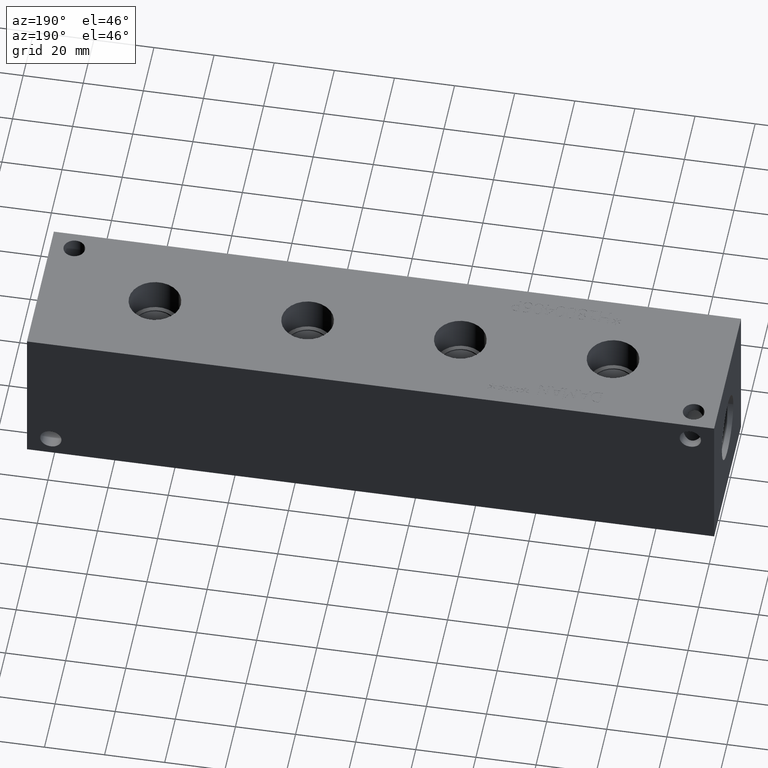
[diagram: clean part render]
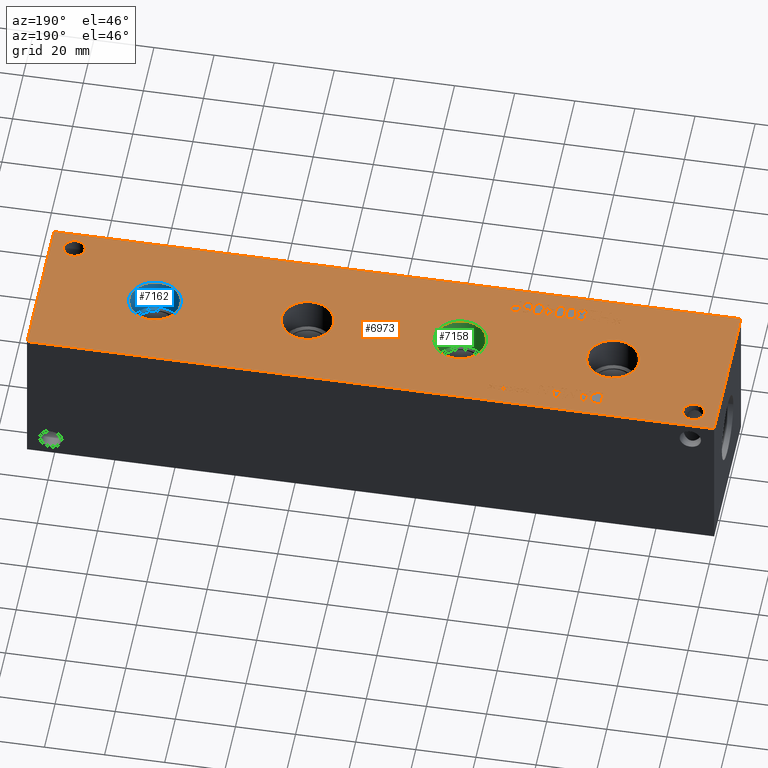
[diagram: same view with three faces highlighted in distinct colors, each labeled with its STEP entity id]
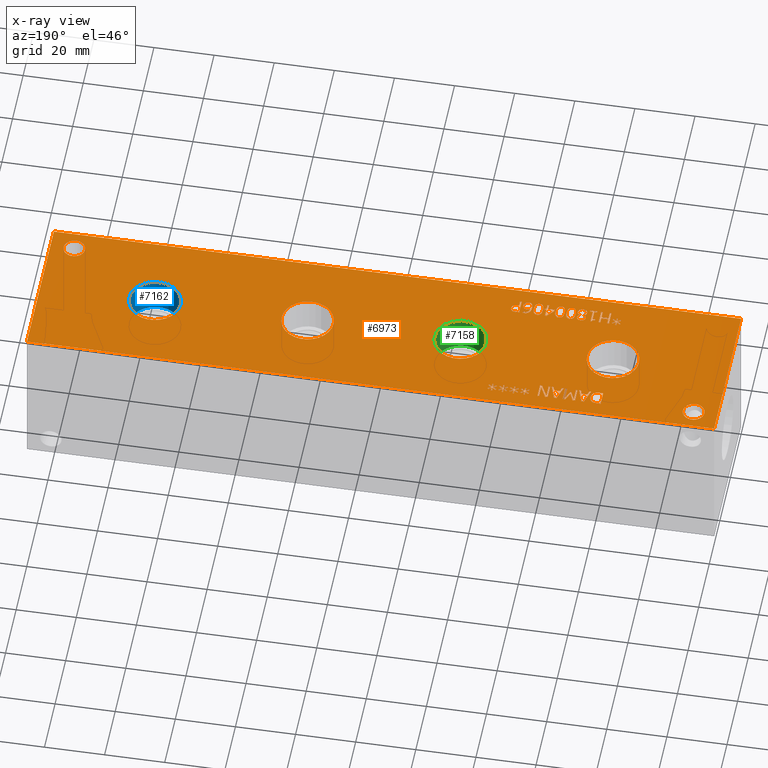
[diagram: x-ray of the same camera — body ghosted, the three highlighted faces saturated]
A machine part, auxiliary view with three faces highlighted in distinct colors.
The next image is the same camera in x-ray (body ghosted, the three faces saturated) — at least one of them is partly hidden behind the body in this view.
Their STEP definitions:

[orange] entity #6973 — the highlighted planar face has unit normal (0, 0, 1).
#60=CIRCLE('',#7269,8.6487);
#61=CIRCLE('',#7270,8.6487);
#62=CIRCLE('',#7271,8.6487);
#63=CIRCLE('',#7272,8.6487);
#64=CIRCLE('',#7273,8.6487);
#65=CIRCLE('',#7274,8.6487);
#66=CIRCLE('',#7275,8.6487);
#67=CIRCLE('',#7276,8.6487);
#68=CIRCLE('',#7277,3.5687);
#69=CIRCLE('',#7278,3.5687);
#70=CIRCLE('',#7279,3.5687);
#71=CIRCLE('',#7280,3.5687);
#150=FACE_BOUND('',#967,.T.);
#151=FACE_BOUND('',#968,.T.);
#152=FACE_BOUND('',#969,.T.);
#153=FACE_BOUND('',#970,.T.);
#154=FACE_BOUND('',#971,.T.);
#155=FACE_BOUND('',#972,.T.);
#156=FACE_BOUND('',#973,.T.);
#157=FACE_BOUND('',#974,.T.);
#158=FACE_BOUND('',#975,.T.);
#159=FACE_BOUND('',#976,.T.);
#160=FACE_BOUND('',#977,.T.);
#161=FACE_BOUND('',#978,.T.);
#162=FACE_BOUND('',#979,.T.);
#163=FACE_BOUND('',#980,.T.);
#164=FACE_BOUND('',#981,.T.);
#165=FACE_BOUND('',#982,.T.);
#166=FACE_BOUND('',#983,.T.);
#167=FACE_BOUND('',#984,.T.);
#168=FACE_BOUND('',#985,.T.);
#169=FACE_BOUND('',#986,.T.);
#170=FACE_BOUND('',#987,.T.);
#171=FACE_BOUND('',#988,.T.);
#172=FACE_BOUND('',#989,.T.);
#173=FACE_BOUND('',#990,.T.);
#174=FACE_BOUND('',#991,.T.);
#276=PLANE('',#7268);
#594=FACE_OUTER_BOUND('',#966,.T.);
#966=EDGE_LOOP('',(#5208,#5209,#5210,#5211));
#967=EDGE_LOOP('',(#5212,#5213,#5214,#5215,#5216,#5217,#5218,#5219,#5220));
#968=EDGE_LOOP('',(#5221,#5222,#5223,#5224,#5225,#5226,#5227,#5228,#5229,
#5230,#5231,#5232,#5233,#5234));
#969=EDGE_LOOP('',(#5235,#5236,#5237,#5238));
#970=EDGE_LOOP('',(#5239,#5240,#5241,#5242,#5243,#5244,#5245,#5246,#5247,
#5248,#5249));
#971=EDGE_LOOP('',(#5250,#5251,#5252,#5253));
#972=EDGE_LOOP('',(#5254,#5255,#5256,#5257));
#973=EDGE_LOOP('',(#5258,#5259,#5260,#5261,#5262,#5263,#5264,#5265,#5266,
#5267,#5268));
#974=EDGE_LOOP('',(#5269,#5270,#5271,#5272,#5273,#5274,#5275,#5276,#5277,
#5278,#5279,#5280,#5281,#5282,#5283,#5284,#5285,#5286));
#975=EDGE_LOOP('',(#5287,#5288,#5289,#5290,#5291,#5292,#5293,#5294,#5295,
#5296,#5297,#5298));
#976=EDGE_LOOP('',(#5299,#5300,#5301,#5302,#5303,#5304,#5305,#5306,#5307,
#5308,#5309));
#977=EDGE_LOOP('',(#5310,#5311));
#978=EDGE_LOOP('',(#5312,#5313));
#979=EDGE_LOOP('',(#5314,#5315));
#980=EDGE_LOOP('',(#5316,#5317));
#981=EDGE_LOOP('',(#5318,#5319));
#982=EDGE_LOOP('',(#5320,#5321));
#983=EDGE_LOOP('',(#5322,#5323,#5324,#5325,#5326,#5327,#5328,#5329,#5330,
#5331,#5332,#5333,#5334,#5335,#5336,#5337,#5338,#5339));
#984=EDGE_LOOP('',(#5340,#5341,#5342,#5343,#5344,#5345,#5346,#5347,#5348,
#5349,#5350,#5351,#5352,#5353,#5354,#5355,#5356,#5357));
#985=EDGE_LOOP('',(#5358,#5359,#5360,#5361,#5362,#5363,#5364,#5365,#5366,
#5367));
#986=EDGE_LOOP('',(#5368,#5369,#5370,#5371,#5372,#5373,#5374,#5375));
#987=EDGE_LOOP('',(#5376,#5377,#5378,#5379,#5380,#5381,#5382));
#988=EDGE_LOOP('',(#5383,#5384,#5385,#5386,#5387,#5388,#5389,#5390));
#989=EDGE_LOOP('',(#5391,#5392,#5393,#5394,#5395,#5396,#5397,#5398,#5399,
#5400,#5401,#5402,#5403));
#990=EDGE_LOOP('',(#5404,#5405,#5406,#5407,#5408,#5409,#5410,#5411,#5412,
#5413,#5414,#5415,#5416,#5417,#5418,#5419,#5420,#5421));
#991=EDGE_LOOP('',(#5422,#5423,#5424,#5425,#5426,#5427,#5428,#5429,#5430,
#5431,#5432,#5433,#5434,#5435,#5436,#5437,#5438,#5439));
#1237=LINE('',#9129,#1945);
#1240=LINE('',#9135,#1948);
#1243=LINE('',#9141,#1951);
#1246=LINE('',#9147,#1954);
#1249=LINE('',#9153,#1957);
#1266=LINE('',#9426,#1974);
#1269=LINE('',#9432,#1977);
#1299=LINE('',#9817,#2007);
#1303=LINE('',#9825,#2011);
#1306=LINE('',#9831,#2014);
#1309=LINE('',#9837,#2017);
#1312=LINE('',#9843,#2020);
#1315=LINE('',#9849,#2023);
#1318=LINE('',#9855,#2026);
#1321=LINE('',#9861,#2029);
#1324=LINE('',#9867,#2032);
#1327=LINE('',#9873,#2035);
#1330=LINE('',#9878,#2038);
#1356=LINE('',#10342,#2064);
#1360=LINE('',#10350,#2068);
#1363=LINE('',#10356,#2071);
#1366=LINE('',#10362,#2074);
#1370=LINE('',#10387,#2078);
#1373=LINE('',#10393,#2081);
#1376=LINE('',#10399,#2084);
#1379=LINE('',#10405,#2087);
#1382=LINE('',#10411,#2090);
#1385=LINE('',#10416,#2093);
#1387=LINE('',#10422,#2095);
#1391=LINE('',#10430,#2099);
#1394=LINE('',#10436,#2102);
#1397=LINE('',#10442,#2105);
#1400=LINE('',#10448,#2108);
#1403=LINE('',#10454,#2111);
#1406=LINE('',#10460,#2114);
#1409=LINE('',#10466,#2117);
#1412=LINE('',#10472,#2120);
#1415=LINE('',#10478,#2123);
#1418=LINE('',#10484,#2126);
#1421=LINE('',#10490,#2129);
#1424=LINE('',#10496,#2132);
#1427=LINE('',#10502,#2135);
#1430=LINE('',#10508,#2138);
#1433=LINE('',#10514,#2141);
#1436=LINE('',#10520,#2144);
#1439=LINE('',#10525,#2147);
#1441=LINE('',#10531,#2149);
#1445=LINE('',#10539,#2153);
#1448=LINE('',#10545,#2156);
#1451=LINE('',#10551,#2159);
#1454=LINE('',#10557,#2162);
#1457=LINE('',#10563,#2165);
#1460=LINE('',#10569,#2168);
#1463=LINE('',#10575,#2171);
#1466=LINE('',#10581,#2174);
#1469=LINE('',#10587,#2177);
#1472=LINE('',#10593,#2180);
#1475=LINE('',#10598,#2183);
#1490=LINE('',#10834,#2198);
#1497=LINE('',#10916,#2205);
#1502=LINE('',#10978,#2210);
#1503=LINE('',#10980,#2211);
#1504=LINE('',#10982,#2212);
#1505=LINE('',#10983,#2213);
#1506=LINE('',#11010,#2214);
#1507=LINE('',#11012,#2215);
#1508=LINE('',#11014,#2216);
#1509=LINE('',#11016,#2217);
#1510=LINE('',#11018,#2218);
#1511=LINE('',#11020,#2219);
#1512=LINE('',#11022,#2220);
#1513=LINE('',#11024,#2221);
#1514=LINE('',#11026,#2222);
#1515=LINE('',#11028,#2223);
#1516=LINE('',#11030,#2224);
#1517=LINE('',#11032,#2225);
#1518=LINE('',#11034,#2226);
#1519=LINE('',#11036,#2227);
#1520=LINE('',#11038,#2228);
#1521=LINE('',#11040,#2229);
#1522=LINE('',#11042,#2230);
#1523=LINE('',#11043,#2231);
#1524=LINE('',#11046,#2232);
#1525=LINE('',#11048,#2233);
#1526=LINE('',#11050,#2234);
#1527=LINE('',#11052,#2235);
#1528=LINE('',#11054,#2236);
#1529=LINE('',#11056,#2237);
#1530=LINE('',#11058,#2238);
#1531=LINE('',#11060,#2239);
#1532=LINE('',#11062,#2240);
#1533=LINE('',#11064,#2241);
#1534=LINE('',#11066,#2242);
#1535=LINE('',#11068,#2243);
#1536=LINE('',#11070,#2244);
#1537=LINE('',#11072,#2245);
#1538=LINE('',#11074,#2246);
#1539=LINE('',#11076,#2247);
#1540=LINE('',#11078,#2248);
#1541=LINE('',#11079,#2249);
#1542=LINE('',#11082,#2250);
#1543=LINE('',#11084,#2251);
#1544=LINE('',#11086,#2252);
#1545=LINE('',#11088,#2253);
#1546=LINE('',#11090,#2254);
#1547=LINE('',#11092,#2255);
#1548=LINE('',#11094,#2256);
#1549=LINE('',#11096,#2257);
#1550=LINE('',#11098,#2258);
#1551=LINE('',#11099,#2259);
#1552=LINE('',#11102,#2260);
#1553=LINE('',#11104,#2261);
#1554=LINE('',#11106,#2262);
#1555=LINE('',#11108,#2263);
#1556=LINE('',#11110,#2264);
#1557=LINE('',#11112,#2265);
#1558=LINE('',#11114,#2266);
#1559=LINE('',#11115,#2267);
#1560=LINE('',#11133,#2268);
#1561=LINE('',#11135,#2269);
#1562=LINE('',#11137,#2270);
#1563=LINE('',#11144,#2271);
#1564=LINE('',#11146,#2272);
#1565=LINE('',#11148,#2273);
#1566=LINE('',#11150,#2274);
#1567=LINE('',#11152,#2275);
#1568=LINE('',#11154,#2276);
#1569=LINE('',#11156,#2277);
#1570=LINE('',#11157,#2278);
#1571=LINE('',#11160,#2279);
#1572=LINE('',#11162,#2280);
#1573=LINE('',#11164,#2281);
#1574=LINE('',#11166,#2282);
#1575=LINE('',#11168,#2283);
#1576=LINE('',#11170,#2284);
#1577=LINE('',#11172,#2285);
#1578=LINE('',#11174,#2286);
#1579=LINE('',#11176,#2287);
#1580=LINE('',#11178,#2288);
#1581=LINE('',#11180,#2289);
#1582=LINE('',#11182,#2290);
#1583=LINE('',#11183,#2291);
#1584=LINE('',#11186,#2292);
#1585=LINE('',#11188,#2293);
#1586=LINE('',#11190,#2294);
#1587=LINE('',#11192,#2295);
#1588=LINE('',#11194,#2296);
#1589=LINE('',#11196,#2297);
#1590=LINE('',#11198,#2298);
#1591=LINE('',#11200,#2299);
#1592=LINE('',#11202,#2300);
#1593=LINE('',#11204,#2301);
#1594=LINE('',#11206,#2302);
#1595=LINE('',#11208,#2303);
#1596=LINE('',#11210,#2304);
#1597=LINE('',#11212,#2305);
#1598=LINE('',#11214,#2306);
#1599=LINE('',#11216,#2307);
#1600=LINE('',#11218,#2308);
#1601=LINE('',#11219,#2309);
#1602=LINE('',#11222,#2310);
#1603=LINE('',#11224,#2311);
#1604=LINE('',#11226,#2312);
#1605=LINE('',#11228,#2313);
#1606=LINE('',#11230,#2314);
#1607=LINE('',#11232,#2315);
#1608=LINE('',#11234,#2316);
#1609=LINE('',#11236,#2317);
#1610=LINE('',#11238,#2318);
#1611=LINE('',#11240,#2319);
#1612=LINE('',#11242,#2320);
#1613=LINE('',#11244,#2321);
#1614=LINE('',#11246,#2322);
#1615=LINE('',#11248,#2323);
#1616=LINE('',#11250,#2324);
#1617=LINE('',#11252,#2325);
#1618=LINE('',#11254,#2326);
#1619=LINE('',#11255,#2327);
#1945=VECTOR('',#7581,10.);
#1948=VECTOR('',#7586,10.);
#1951=VECTOR('',#7591,10.);
#1954=VECTOR('',#7596,10.);
#1957=VECTOR('',#7601,10.);
#1974=VECTOR('',#7622,10.);
#1977=VECTOR('',#7627,10.);
#2007=VECTOR('',#7669,10.);
#2011=VECTOR('',#7675,10.);
#2014=VECTOR('',#7680,10.);
#2017=VECTOR('',#7685,10.);
#2020=VECTOR('',#7690,10.);
#2023=VECTOR('',#7695,10.);
#2026=VECTOR('',#7700,10.);
#2029=VECTOR('',#7705,10.);
#2032=VECTOR('',#7710,10.);
#2035=VECTOR('',#7715,10.);
#2038=VECTOR('',#7720,10.);
#2064=VECTOR('',#7754,10.);
#2068=VECTOR('',#7760,10.);
#2071=VECTOR('',#7765,10.);
#2074=VECTOR('',#7770,10.);
#2078=VECTOR('',#7776,10.);
#2081=VECTOR('',#7781,10.);
#2084=VECTOR('',#7786,10.);
#2087=VECTOR('',#7791,10.);
#2090=VECTOR('',#7796,10.);
#2093=VECTOR('',#7801,10.);
#2095=VECTOR('',#7807,10.);
#2099=VECTOR('',#7813,10.);
#2102=VECTOR('',#7818,10.);
#2105=VECTOR('',#7823,10.);
#2108=VECTOR('',#7828,10.);
#2111=VECTOR('',#7833,10.);
#2114=VECTOR('',#7838,10.);
#2117=VECTOR('',#7843,10.);
#2120=VECTOR('',#7848,10.);
#2123=VECTOR('',#7853,10.);
#2126=VECTOR('',#7858,10.);
#2129=VECTOR('',#7863,10.);
#2132=VECTOR('',#7868,10.);
#2135=VECTOR('',#7873,10.);
#2138=VECTOR('',#7878,10.);
#2141=VECTOR('',#7883,10.);
#2144=VECTOR('',#7888,10.);
#2147=VECTOR('',#7893,10.);
#2149=VECTOR('',#7899,10.);
#2153=VECTOR('',#7905,10.);
#2156=VECTOR('',#7910,10.);
#2159=VECTOR('',#7915,10.);
#2162=VECTOR('',#7920,10.);
#2165=VECTOR('',#7925,10.);
#2168=VECTOR('',#7930,10.);
#2171=VECTOR('',#7935,10.);
#2174=VECTOR('',#7940,10.);
#2177=VECTOR('',#7945,10.);
#2180=VECTOR('',#7950,10.);
#2183=VECTOR('',#7955,10.);
#2198=VECTOR('',#7974,10.);
#2205=VECTOR('',#7983,10.);
#2210=VECTOR('',#7992,10.);
#2211=VECTOR('',#7993,10.);
#2212=VECTOR('',#7994,10.);
#2213=VECTOR('',#7995,10.);
#2214=VECTOR('',#8020,10.);
#2215=VECTOR('',#8021,10.);
#2216=VECTOR('',#8022,10.);
#2217=VECTOR('',#8023,10.);
#2218=VECTOR('',#8024,10.);
#2219=VECTOR('',#8025,10.);
#2220=VECTOR('',#8026,10.);
#2221=VECTOR('',#8027,10.);
#2222=VECTOR('',#8028,10.);
#2223=VECTOR('',#8029,10.);
#2224=VECTOR('',#8030,10.);
#2225=VECTOR('',#8031,10.);
#2226=VECTOR('',#8032,10.);
#2227=VECTOR('',#8033,10.);
#2228=VECTOR('',#8034,10.);
#2229=VECTOR('',#8035,10.);
#2230=VECTOR('',#8036,10.);
#2231=VECTOR('',#8037,10.);
#2232=VECTOR('',#8038,10.);
#2233=VECTOR('',#8039,10.);
#2234=VECTOR('',#8040,10.);
#2235=VECTOR('',#8041,10.);
#2236=VECTOR('',#8042,10.);
#2237=VECTOR('',#8043,10.);
#2238=VECTOR('',#8044,10.);
#2239=VECTOR('',#8045,10.);
#2240=VECTOR('',#8046,10.);
#2241=VECTOR('',#8047,10.);
#2242=VECTOR('',#8048,10.);
#2243=VECTOR('',#8049,10.);
#2244=VECTOR('',#8050,10.);
#2245=VECTOR('',#8051,10.);
#2246=VECTOR('',#8052,10.);
#2247=VECTOR('',#8053,10.);
#2248=VECTOR('',#8054,10.);
#2249=VECTOR('',#8055,10.);
#2250=VECTOR('',#8056,10.);
#2251=VECTOR('',#8057,10.);
#2252=VECTOR('',#8058,10.);
#2253=VECTOR('',#8059,10.);
#2254=VECTOR('',#8060,10.);
#2255=VECTOR('',#8061,10.);
#2256=VECTOR('',#8062,10.);
#2257=VECTOR('',#8063,10.);
#2258=VECTOR('',#8064,10.);
#2259=VECTOR('',#8065,10.);
#2260=VECTOR('',#8066,10.);
#2261=VECTOR('',#8067,10.);
#2262=VECTOR('',#8068,10.);
#2263=VECTOR('',#8069,10.);
#2264=VECTOR('',#8070,10.);
#2265=VECTOR('',#8071,10.);
#2266=VECTOR('',#8072,10.);
#2267=VECTOR('',#8073,10.);
#2268=VECTOR('',#8074,10.);
#2269=VECTOR('',#8075,10.);
#2270=VECTOR('',#8076,10.);
#2271=VECTOR('',#8077,10.);
#2272=VECTOR('',#8078,10.);
#2273=VECTOR('',#8079,10.);
#2274=VECTOR('',#8080,10.);
#2275=VECTOR('',#8081,10.);
#2276=VECTOR('',#8082,10.);
#2277=VECTOR('',#8083,10.);
#2278=VECTOR('',#8084,10.);
#2279=VECTOR('',#8085,10.);
#2280=VECTOR('',#8086,10.);
#2281=VECTOR('',#8087,10.);
#2282=VECTOR('',#8088,10.);
#2283=VECTOR('',#8089,10.);
#2284=VECTOR('',#8090,10.);
#2285=VECTOR('',#8091,10.);
#2286=VECTOR('',#8092,10.);
#2287=VECTOR('',#8093,10.);
#2288=VECTOR('',#8094,10.);
#2289=VECTOR('',#8095,10.);
#2290=VECTOR('',#8096,10.);
#2291=VECTOR('',#8097,10.);
#2292=VECTOR('',#8098,10.);
#2293=VECTOR('',#8099,10.);
#2294=VECTOR('',#8100,10.);
#2295=VECTOR('',#8101,10.);
#2296=VECTOR('',#8102,10.);
#2297=VECTOR('',#8103,10.);
#2298=VECTOR('',#8104,10.);
#2299=VECTOR('',#8105,10.);
#2300=VECTOR('',#8106,10.);
#2301=VECTOR('',#8107,10.);
#2302=VECTOR('',#8108,10.);
#2303=VECTOR('',#8109,10.);
#2304=VECTOR('',#8110,10.);
#2305=VECTOR('',#8111,10.);
#2306=VECTOR('',#8112,10.);
#2307=VECTOR('',#8113,10.);
#2308=VECTOR('',#8114,10.);
#2309=VECTOR('',#8115,10.);
#2310=VECTOR('',#8116,10.);
#2311=VECTOR('',#8117,10.);
#2312=VECTOR('',#8118,10.);
#2313=VECTOR('',#8119,10.);
#2314=VECTOR('',#8120,10.);
#2315=VECTOR('',#8121,10.);
#2316=VECTOR('',#8122,10.);
#2317=VECTOR('',#8123,10.);
#2318=VECTOR('',#8124,10.);
#2319=VECTOR('',#8125,10.);
#2320=VECTOR('',#8126,10.);
#2321=VECTOR('',#8127,10.);
#2322=VECTOR('',#8128,10.);
#2323=VECTOR('',#8129,10.);
#2324=VECTOR('',#8130,10.);
#2325=VECTOR('',#8131,10.);
#2326=VECTOR('',#8132,10.);
#2327=VECTOR('',#8133,10.);
#2645=B_SPLINE_CURVE_WITH_KNOTS('',2,(#9096,#9097,#9098,#9099),
 .UNSPECIFIED.,.F.,.F.,(3,1,3),(0.,1.,2.),.UNSPECIFIED.);
#2647=B_SPLINE_CURVE_WITH_KNOTS('',2,(#9117,#9118,#9119,#9120),
 .UNSPECIFIED.,.F.,.F.,(3,1,3),(0.,1.,2.),.UNSPECIFIED.);
#2649=B_SPLINE_CURVE_WITH_KNOTS('',2,(#9166,#9167,#9168,#9169),
 .UNSPECIFIED.,.F.,.F.,(3,1,3),(0.,1.,2.),.UNSPECIFIED.);
#2651=B_SPLINE_CURVE_WITH_KNOTS('',2,(#9184,#9185,#9186,#9187),
 .UNSPECIFIED.,.F.,.F.,(3,1,3),(0.,1.,2.),.UNSPECIFIED.);
#2667=B_SPLINE_CURVE_WITH_KNOTS('',2,(#9336,#9337,#9338,#9339),
 .UNSPECIFIED.,.F.,.F.,(3,1,3),(0.,1.,2.),.UNSPECIFIED.);
#2669=B_SPLINE_CURVE_WITH_KNOTS('',2,(#9357,#9358,#9359,#9360),
 .UNSPECIFIED.,.F.,.F.,(3,1,3),(0.,1.,2.),.UNSPECIFIED.);
#2671=B_SPLINE_CURVE_WITH_KNOTS('',2,(#9376,#9377,#9378,#9379),
 .UNSPECIFIED.,.F.,.F.,(3,1,3),(0.,1.,2.),.UNSPECIFIED.);
#2673=B_SPLINE_CURVE_WITH_KNOTS('',2,(#9395,#9396,#9397,#9398),
 .UNSPECIFIED.,.F.,.F.,(3,1,3),(0.,1.,2.),.UNSPECIFIED.);
#2675=B_SPLINE_CURVE_WITH_KNOTS('',2,(#9414,#9415,#9416,#9417),
 .UNSPECIFIED.,.F.,.F.,(3,1,3),(0.,1.,2.),.UNSPECIFIED.);
#2677=B_SPLINE_CURVE_WITH_KNOTS('',2,(#9445,#9446,#9447,#9448),
 .UNSPECIFIED.,.F.,.F.,(3,1,3),(0.,1.,2.),.UNSPECIFIED.);
#2679=B_SPLINE_CURVE_WITH_KNOTS('',2,(#9464,#9465,#9466,#9467),
 .UNSPECIFIED.,.F.,.F.,(3,1,3),(0.,1.,2.),.UNSPECIFIED.);
#2681=B_SPLINE_CURVE_WITH_KNOTS('',2,(#9483,#9484,#9485,#9486),
 .UNSPECIFIED.,.F.,.F.,(3,1,3),(0.,1.,2.),.UNSPECIFIED.);
#2683=B_SPLINE_CURVE_WITH_KNOTS('',2,(#9502,#9503,#9504,#9505),
 .UNSPECIFIED.,.F.,.F.,(3,1,3),(0.,1.,2.),.UNSPECIFIED.);
#2685=B_SPLINE_CURVE_WITH_KNOTS('',2,(#9521,#9522,#9523,#9524),
 .UNSPECIFIED.,.F.,.F.,(3,1,3),(0.,1.,2.),.UNSPECIFIED.);
#2687=B_SPLINE_CURVE_WITH_KNOTS('',2,(#9540,#9541,#9542,#9543),
 .UNSPECIFIED.,.F.,.F.,(3,1,3),(0.,1.,2.),.UNSPECIFIED.);
#2689=B_SPLINE_CURVE_WITH_KNOTS('',2,(#9558,#9559,#9560,#9561),
 .UNSPECIFIED.,.F.,.F.,(3,1,3),(0.,1.,2.),.UNSPECIFIED.);
#2707=B_SPLINE_CURVE_WITH_KNOTS('',2,(#9729,#9730,#9731,#9732),
 .UNSPECIFIED.,.F.,.F.,(3,1,3),(0.,1.,2.),.UNSPECIFIED.);
#2709=B_SPLINE_CURVE_WITH_KNOTS('',2,(#9750,#9751,#9752,#9753),
 .UNSPECIFIED.,.F.,.F.,(3,1,3),(0.,1.,2.),.UNSPECIFIED.);
#2711=B_SPLINE_CURVE_WITH_KNOTS('',2,(#9769,#9770,#9771,#9772),
 .UNSPECIFIED.,.F.,.F.,(3,1,3),(0.,1.,2.),.UNSPECIFIED.);
#2713=B_SPLINE_CURVE_WITH_KNOTS('',2,(#9787,#9788,#9789,#9790),
 .UNSPECIFIED.,.F.,.F.,(3,1,3),(0.,1.,2.),.UNSPECIFIED.);
#2731=B_SPLINE_CURVE_WITH_KNOTS('',2,(#10043,#10044,#10045,#10046),
 .UNSPECIFIED.,.F.,.F.,(3,1,3),(0.,1.,2.),.UNSPECIFIED.);
#2733=B_SPLINE_CURVE_WITH_KNOTS('',2,(#10064,#10065,#10066,#10067),
 .UNSPECIFIED.,.F.,.F.,(3,1,3),(0.,1.,2.),.UNSPECIFIED.);
#2735=B_SPLINE_CURVE_WITH_KNOTS('',2,(#10083,#10084,#10085,#10086),
 .UNSPECIFIED.,.F.,.F.,(3,1,3),(0.,1.,2.),.UNSPECIFIED.);
#2737=B_SPLINE_CURVE_WITH_KNOTS('',2,(#10101,#10102,#10103,#10104),
 .UNSPECIFIED.,.F.,.F.,(3,1,3),(0.,1.,2.),.UNSPECIFIED.);
#2755=B_SPLINE_CURVE_WITH_KNOTS('',2,(#10272,#10273,#10274,#10275),
 .UNSPECIFIED.,.F.,.F.,(3,1,3),(0.,1.,2.),.UNSPECIFIED.);
#2757=B_SPLINE_CURVE_WITH_KNOTS('',2,(#10293,#10294,#10295,#10296),
 .UNSPECIFIED.,.F.,.F.,(3,1,3),(0.,1.,2.),.UNSPECIFIED.);
#2759=B_SPLINE_CURVE_WITH_KNOTS('',2,(#10312,#10313,#10314,#10315),
 .UNSPECIFIED.,.F.,.F.,(3,1,3),(0.,1.,2.),.UNSPECIFIED.);
#2761=B_SPLINE_CURVE_WITH_KNOTS('',2,(#10330,#10331,#10332,#10333),
 .UNSPECIFIED.,.F.,.F.,(3,1,3),(0.,1.,2.),.UNSPECIFIED.);
#2763=B_SPLINE_CURVE_WITH_KNOTS('',2,(#10375,#10376,#10377,#10378),
 .UNSPECIFIED.,.F.,.F.,(3,1,3),(0.,1.,2.),.UNSPECIFIED.);
#2785=B_SPLINE_CURVE_WITH_KNOTS('',2,(#10801,#10802,#10803,#10804),
 .UNSPECIFIED.,.F.,.F.,(3,1,3),(0.,1.,2.),.UNSPECIFIED.);
#2787=B_SPLINE_CURVE_WITH_KNOTS('',2,(#10822,#10823,#10824,#10825),
 .UNSPECIFIED.,.F.,.F.,(3,1,3),(0.,1.,2.),.UNSPECIFIED.);
#2789=B_SPLINE_CURVE_WITH_KNOTS('',2,(#10847,#10848,#10849,#10850),
 .UNSPECIFIED.,.F.,.F.,(3,1,3),(0.,1.,2.),.UNSPECIFIED.);
#2791=B_SPLINE_CURVE_WITH_KNOTS('',2,(#10866,#10867,#10868,#10869),
 .UNSPECIFIED.,.F.,.F.,(3,1,3),(0.,1.,2.),.UNSPECIFIED.);
#2793=B_SPLINE_CURVE_WITH_KNOTS('',2,(#10885,#10886,#10887,#10888),
 .UNSPECIFIED.,.F.,.F.,(3,1,3),(0.,1.,2.),.UNSPECIFIED.);
#2795=B_SPLINE_CURVE_WITH_KNOTS('',2,(#10904,#10905,#10906,#10907),
 .UNSPECIFIED.,.F.,.F.,(3,1,3),(0.,1.,2.),.UNSPECIFIED.);
#2797=B_SPLINE_CURVE_WITH_KNOTS('',2,(#10929,#10930,#10931,#10932),
 .UNSPECIFIED.,.F.,.F.,(3,1,3),(0.,1.,2.),.UNSPECIFIED.);
#2799=B_SPLINE_CURVE_WITH_KNOTS('',2,(#10948,#10949,#10950,#10951),
 .UNSPECIFIED.,.F.,.F.,(3,1,3),(0.,1.,2.),.UNSPECIFIED.);
#2801=B_SPLINE_CURVE_WITH_KNOTS('',2,(#10966,#10967,#10968,#10969),
 .UNSPECIFIED.,.F.,.F.,(3,1,3),(0.,1.,2.),.UNSPECIFIED.);
#2803=B_SPLINE_CURVE_WITH_KNOTS('',2,(#11118,#11119,#11120,#11121),
 .UNSPECIFIED.,.F.,.F.,(3,1,3),(0.,1.,2.),.UNSPECIFIED.);
#2804=B_SPLINE_CURVE_WITH_KNOTS('',2,(#11123,#11124,#11125,#11126),
 .UNSPECIFIED.,.F.,.F.,(3,1,3),(0.,1.,2.),.UNSPECIFIED.);
#2805=B_SPLINE_CURVE_WITH_KNOTS('',2,(#11128,#11129,#11130,#11131),
 .UNSPECIFIED.,.F.,.F.,(3,1,3),(0.,1.,2.),.UNSPECIFIED.);
#2806=B_SPLINE_CURVE_WITH_KNOTS('',2,(#11138,#11139,#11140,#11141),
 .UNSPECIFIED.,.F.,.F.,(3,1,3),(0.,1.,2.),.UNSPECIFIED.);
#2833=VERTEX_POINT('',#9094);
#2834=VERTEX_POINT('',#9095);
#2837=VERTEX_POINT('',#9116);
#2839=VERTEX_POINT('',#9128);
#2841=VERTEX_POINT('',#9134);
#2843=VERTEX_POINT('',#9140);
#2845=VERTEX_POINT('',#9146);
#2847=VERTEX_POINT('',#9152);
#2849=VERTEX_POINT('',#9165);
#2865=VERTEX_POINT('',#9334);
#2866=VERTEX_POINT('',#9335);
#2869=VERTEX_POINT('',#9356);
#2871=VERTEX_POINT('',#9375);
#2873=VERTEX_POINT('',#9394);
#2875=VERTEX_POINT('',#9413);
#2877=VERTEX_POINT('',#9425);
#2879=VERTEX_POINT('',#9431);
#2881=VERTEX_POINT('',#9444);
#2883=VERTEX_POINT('',#9463);
#2885=VERTEX_POINT('',#9482);
#2887=VERTEX_POINT('',#9501);
#2889=VERTEX_POINT('',#9520);
#2891=VERTEX_POINT('',#9539);
#2909=VERTEX_POINT('',#9727);
#2910=VERTEX_POINT('',#9728);
#2913=VERTEX_POINT('',#9749);
#2915=VERTEX_POINT('',#9768);
#2923=VERTEX_POINT('',#9815);
#2924=VERTEX_POINT('',#9816);
#2927=VERTEX_POINT('',#9824);
#2929=VERTEX_POINT('',#9830);
#2931=VERTEX_POINT('',#9836);
#2933=VERTEX_POINT('',#9842);
#2935=VERTEX_POINT('',#9848);
#2937=VERTEX_POINT('',#9854);
#2939=VERTEX_POINT('',#9860);
#2941=VERTEX_POINT('',#9866);
#2943=VERTEX_POINT('',#9872);
#2961=VERTEX_POINT('',#10041);
#2962=VERTEX_POINT('',#10042);
#2965=VERTEX_POINT('',#10063);
#2967=VERTEX_POINT('',#10082);
#2985=VERTEX_POINT('',#10270);
#2986=VERTEX_POINT('',#10271);
#2989=VERTEX_POINT('',#10292);
#2991=VERTEX_POINT('',#10311);
#2993=VERTEX_POINT('',#10340);
#2994=VERTEX_POINT('',#10341);
#2997=VERTEX_POINT('',#10349);
#2999=VERTEX_POINT('',#10355);
#3001=VERTEX_POINT('',#10361);
#3003=VERTEX_POINT('',#10374);
#3005=VERTEX_POINT('',#10386);
#3007=VERTEX_POINT('',#10392);
#3009=VERTEX_POINT('',#10398);
#3011=VERTEX_POINT('',#10404);
#3013=VERTEX_POINT('',#10410);
#3015=VERTEX_POINT('',#10420);
#3016=VERTEX_POINT('',#10421);
#3019=VERTEX_POINT('',#10429);
#3021=VERTEX_POINT('',#10435);
#3023=VERTEX_POINT('',#10441);
#3025=VERTEX_POINT('',#10447);
#3027=VERTEX_POINT('',#10453);
#3029=VERTEX_POINT('',#10459);
#3031=VERTEX_POINT('',#10465);
#3033=VERTEX_POINT('',#10471);
#3035=VERTEX_POINT('',#10477);
#3037=VERTEX_POINT('',#10483);
#3039=VERTEX_POINT('',#10489);
#3041=VERTEX_POINT('',#10495);
#3043=VERTEX_POINT('',#10501);
#3045=VERTEX_POINT('',#10507);
#3047=VERTEX_POINT('',#10513);
#3049=VERTEX_POINT('',#10519);
#3051=VERTEX_POINT('',#10529);
#3052=VERTEX_POINT('',#10530);
#3055=VERTEX_POINT('',#10538);
#3057=VERTEX_POINT('',#10544);
#3059=VERTEX_POINT('',#10550);
#3061=VERTEX_POINT('',#10556);
#3063=VERTEX_POINT('',#10562);
#3065=VERTEX_POINT('',#10568);
#3067=VERTEX_POINT('',#10574);
#3069=VERTEX_POINT('',#10580);
#3071=VERTEX_POINT('',#10586);
#3073=VERTEX_POINT('',#10592);
#3095=VERTEX_POINT('',#10799);
#3096=VERTEX_POINT('',#10800);
#3099=VERTEX_POINT('',#10821);
#3101=VERTEX_POINT('',#10833);
#3103=VERTEX_POINT('',#10846);
#3105=VERTEX_POINT('',#10865);
#3107=VERTEX_POINT('',#10884);
#3109=VERTEX_POINT('',#10903);
#3111=VERTEX_POINT('',#10915);
#3113=VERTEX_POINT('',#10928);
#3115=VERTEX_POINT('',#10947);
#3117=VERTEX_POINT('',#10976);
#3118=VERTEX_POINT('',#10977);
#3119=VERTEX_POINT('',#10979);
#3120=VERTEX_POINT('',#10981);
#3121=VERTEX_POINT('',#10984);
#3122=VERTEX_POINT('',#10985);
#3123=VERTEX_POINT('',#10988);
#3124=VERTEX_POINT('',#10989);
#3125=VERTEX_POINT('',#10992);
#3126=VERTEX_POINT('',#10993);
#3127=VERTEX_POINT('',#10996);
#3128=VERTEX_POINT('',#10997);
#3129=VERTEX_POINT('',#11000);
#3130=VERTEX_POINT('',#11001);
#3131=VERTEX_POINT('',#11004);
#3132=VERTEX_POINT('',#11005);
#3133=VERTEX_POINT('',#11008);
#3134=VERTEX_POINT('',#11009);
#3135=VERTEX_POINT('',#11011);
#3136=VERTEX_POINT('',#11013);
#3137=VERTEX_POINT('',#11015);
#3138=VERTEX_POINT('',#11017);
#3139=VERTEX_POINT('',#11019);
#3140=VERTEX_POINT('',#11021);
#3141=VERTEX_POINT('',#11023);
#3142=VERTEX_POINT('',#11025);
#3143=VERTEX_POINT('',#11027);
#3144=VERTEX_POINT('',#11029);
#3145=VERTEX_POINT('',#11031);
#3146=VERTEX_POINT('',#11033);
#3147=VERTEX_POINT('',#11035);
#3148=VERTEX_POINT('',#11037);
#3149=VERTEX_POINT('',#11039);
#3150=VERTEX_POINT('',#11041);
#3151=VERTEX_POINT('',#11044);
#3152=VERTEX_POINT('',#11045);
#3153=VERTEX_POINT('',#11047);
#3154=VERTEX_POINT('',#11049);
#3155=VERTEX_POINT('',#11051);
#3156=VERTEX_POINT('',#11053);
#3157=VERTEX_POINT('',#11055);
#3158=VERTEX_POINT('',#11057);
#3159=VERTEX_POINT('',#11059);
#3160=VERTEX_POINT('',#11061);
#3161=VERTEX_POINT('',#11063);
#3162=VERTEX_POINT('',#11065);
#3163=VERTEX_POINT('',#11067);
#3164=VERTEX_POINT('',#11069);
#3165=VERTEX_POINT('',#11071);
#3166=VERTEX_POINT('',#11073);
#3167=VERTEX_POINT('',#11075);
#3168=VERTEX_POINT('',#11077);
#3169=VERTEX_POINT('',#11080);
#3170=VERTEX_POINT('',#11081);
#3171=VERTEX_POINT('',#11083);
#3172=VERTEX_POINT('',#11085);
#3173=VERTEX_POINT('',#11087);
#3174=VERTEX_POINT('',#11089);
#3175=VERTEX_POINT('',#11091);
#3176=VERTEX_POINT('',#11093);
#3177=VERTEX_POINT('',#11095);
#3178=VERTEX_POINT('',#11097);
#3179=VERTEX_POINT('',#11100);
#3180=VERTEX_POINT('',#11101);
#3181=VERTEX_POINT('',#11103);
#3182=VERTEX_POINT('',#11105);
#3183=VERTEX_POINT('',#11107);
#3184=VERTEX_POINT('',#11109);
#3185=VERTEX_POINT('',#11111);
#3186=VERTEX_POINT('',#11113);
#3187=VERTEX_POINT('',#11116);
#3188=VERTEX_POINT('',#11117);
#3189=VERTEX_POINT('',#11122);
#3190=VERTEX_POINT('',#11127);
#3191=VERTEX_POINT('',#11132);
#3192=VERTEX_POINT('',#11134);
#3193=VERTEX_POINT('',#11136);
#3194=VERTEX_POINT('',#11142);
#3195=VERTEX_POINT('',#11143);
#3196=VERTEX_POINT('',#11145);
#3197=VERTEX_POINT('',#11147);
#3198=VERTEX_POINT('',#11149);
#3199=VERTEX_POINT('',#11151);
#3200=VERTEX_POINT('',#11153);
#3201=VERTEX_POINT('',#11155);
#3202=VERTEX_POINT('',#11158);
#3203=VERTEX_POINT('',#11159);
#3204=VERTEX_POINT('',#11161);
#3205=VERTEX_POINT('',#11163);
#3206=VERTEX_POINT('',#11165);
#3207=VERTEX_POINT('',#11167);
#3208=VERTEX_POINT('',#11169);
#3209=VERTEX_POINT('',#11171);
#3210=VERTEX_POINT('',#11173);
#3211=VERTEX_POINT('',#11175);
#3212=VERTEX_POINT('',#11177);
#3213=VERTEX_POINT('',#11179);
#3214=VERTEX_POINT('',#11181);
#3215=VERTEX_POINT('',#11184);
#3216=VERTEX_POINT('',#11185);
#3217=VERTEX_POINT('',#11187);
#3218=VERTEX_POINT('',#11189);
#3219=VERTEX_POINT('',#11191);
#3220=VERTEX_POINT('',#11193);
#3221=VERTEX_POINT('',#11195);
#3222=VERTEX_POINT('',#11197);
#3223=VERTEX_POINT('',#11199);
#3224=VERTEX_POINT('',#11201);
#3225=VERTEX_POINT('',#11203);
#3226=VERTEX_POINT('',#11205);
#3227=VERTEX_POINT('',#11207);
#3228=VERTEX_POINT('',#11209);
#3229=VERTEX_POINT('',#11211);
#3230=VERTEX_POINT('',#11213);
#3231=VERTEX_POINT('',#11215);
#3232=VERTEX_POINT('',#11217);
#3233=VERTEX_POINT('',#11220);
#3234=VERTEX_POINT('',#11221);
#3235=VERTEX_POINT('',#11223);
#3236=VERTEX_POINT('',#11225);
#3237=VERTEX_POINT('',#11227);
#3238=VERTEX_POINT('',#11229);
#3239=VERTEX_POINT('',#11231);
#3240=VERTEX_POINT('',#11233);
#3241=VERTEX_POINT('',#11235);
#3242=VERTEX_POINT('',#11237);
#3243=VERTEX_POINT('',#11239);
#3244=VERTEX_POINT('',#11241);
#3245=VERTEX_POINT('',#11243);
#3246=VERTEX_POINT('',#11245);
#3247=VERTEX_POINT('',#11247);
#3248=VERTEX_POINT('',#11249);
#3249=VERTEX_POINT('',#11251);
#3250=VERTEX_POINT('',#11253);
#3504=EDGE_CURVE('',#2833,#2834,#2645,.T.);
#3508=EDGE_CURVE('',#2837,#2833,#2647,.T.);
#3511=EDGE_CURVE('',#2839,#2837,#1237,.T.);
#3514=EDGE_CURVE('',#2841,#2839,#1240,.T.);
#3517=EDGE_CURVE('',#2843,#2841,#1243,.T.);
#3520=EDGE_CURVE('',#2845,#2843,#1246,.T.);
#3523=EDGE_CURVE('',#2847,#2845,#1249,.T.);
#3526=EDGE_CURVE('',#2849,#2847,#2649,.T.);
#3529=EDGE_CURVE('',#2834,#2849,#2651,.T.);
#3552=EDGE_CURVE('',#2865,#2866,#2667,.T.);
#3556=EDGE_CURVE('',#2869,#2865,#2669,.T.);
#3559=EDGE_CURVE('',#2871,#2869,#2671,.T.);
#3562=EDGE_CURVE('',#2873,#2871,#2673,.T.);
#3565=EDGE_CURVE('',#2875,#2873,#2675,.T.);
#3568=EDGE_CURVE('',#2877,#2875,#1266,.T.);
#3571=EDGE_CURVE('',#2879,#2877,#1269,.T.);
#3574=EDGE_CURVE('',#2881,#2879,#2677,.T.);
#3577=EDGE_CURVE('',#2883,#2881,#2679,.T.);
#3580=EDGE_CURVE('',#2885,#2883,#2681,.T.);
#3583=EDGE_CURVE('',#2887,#2885,#2683,.T.);
#3586=EDGE_CURVE('',#2889,#2887,#2685,.T.);
#3589=EDGE_CURVE('',#2891,#2889,#2687,.T.);
#3592=EDGE_CURVE('',#2866,#2891,#2689,.T.);
#3618=EDGE_CURVE('',#2909,#2910,#2707,.T.);
#3622=EDGE_CURVE('',#2913,#2909,#2709,.T.);
#3625=EDGE_CURVE('',#2915,#2913,#2711,.T.);
#3628=EDGE_CURVE('',#2910,#2915,#2713,.T.);
#3639=EDGE_CURVE('',#2923,#2924,#1299,.T.);
#3643=EDGE_CURVE('',#2927,#2923,#1303,.T.);
#3646=EDGE_CURVE('',#2929,#2927,#1306,.T.);
#3649=EDGE_CURVE('',#2931,#2929,#1309,.T.);
#3652=EDGE_CURVE('',#2933,#2931,#1312,.T.);
#3655=EDGE_CURVE('',#2935,#2933,#1315,.T.);
#3658=EDGE_CURVE('',#2937,#2935,#1318,.T.);
#3661=EDGE_CURVE('',#2939,#2937,#1321,.T.);
#3664=EDGE_CURVE('',#2941,#2939,#1324,.T.);
#3667=EDGE_CURVE('',#2943,#2941,#1327,.T.);
#3670=EDGE_CURVE('',#2924,#2943,#1330,.T.);
#3696=EDGE_CURVE('',#2961,#2962,#2731,.T.);
#3700=EDGE_CURVE('',#2965,#2961,#2733,.T.);
#3703=EDGE_CURVE('',#2967,#2965,#2735,.T.);
#3706=EDGE_CURVE('',#2962,#2967,#2737,.T.);
#3732=EDGE_CURVE('',#2985,#2986,#2755,.T.);
#3736=EDGE_CURVE('',#2989,#2985,#2757,.T.);
#3739=EDGE_CURVE('',#2991,#2989,#2759,.T.);
#3742=EDGE_CURVE('',#2986,#2991,#2761,.T.);
#3744=EDGE_CURVE('',#2993,#2994,#1356,.T.);
#3748=EDGE_CURVE('',#2997,#2993,#1360,.T.);
#3751=EDGE_CURVE('',#2999,#2997,#1363,.T.);
#3754=EDGE_CURVE('',#3001,#2999,#1366,.T.);
#3757=EDGE_CURVE('',#3003,#3001,#2763,.T.);
#3760=EDGE_CURVE('',#3005,#3003,#1370,.T.);
#3763=EDGE_CURVE('',#3007,#3005,#1373,.T.);
#3766=EDGE_CURVE('',#3009,#3007,#1376,.T.);
#3769=EDGE_CURVE('',#3011,#3009,#1379,.T.);
#3772=EDGE_CURVE('',#3013,#3011,#1382,.T.);
#3775=EDGE_CURVE('',#2994,#3013,#1385,.T.);
#3777=EDGE_CURVE('',#3015,#3016,#1387,.T.);
#3781=EDGE_CURVE('',#3019,#3015,#1391,.T.);
#3784=EDGE_CURVE('',#3021,#3019,#1394,.T.);
#3787=EDGE_CURVE('',#3023,#3021,#1397,.T.);
#3790=EDGE_CURVE('',#3025,#3023,#1400,.T.);
#3793=EDGE_CURVE('',#3027,#3025,#1403,.T.);
#3796=EDGE_CURVE('',#3029,#3027,#1406,.T.);
#3799=EDGE_CURVE('',#3031,#3029,#1409,.T.);
#3802=EDGE_CURVE('',#3033,#3031,#1412,.T.);
#3805=EDGE_CURVE('',#3035,#3033,#1415,.T.);
#3808=EDGE_CURVE('',#3037,#3035,#1418,.T.);
#3811=EDGE_CURVE('',#3039,#3037,#1421,.T.);
#3814=EDGE_CURVE('',#3041,#3039,#1424,.T.);
#3817=EDGE_CURVE('',#3043,#3041,#1427,.T.);
#3820=EDGE_CURVE('',#3045,#3043,#1430,.T.);
#3823=EDGE_CURVE('',#3047,#3045,#1433,.T.);
#3826=EDGE_CURVE('',#3049,#3047,#1436,.T.);
#3829=EDGE_CURVE('',#3016,#3049,#1439,.T.);
#3831=EDGE_CURVE('',#3051,#3052,#1441,.T.);
#3835=EDGE_CURVE('',#3055,#3051,#1445,.T.);
#3838=EDGE_CURVE('',#3057,#3055,#1448,.T.);
#3841=EDGE_CURVE('',#3059,#3057,#1451,.T.);
#3844=EDGE_CURVE('',#3061,#3059,#1454,.T.);
#3847=EDGE_CURVE('',#3063,#3061,#1457,.T.);
#3850=EDGE_CURVE('',#3065,#3063,#1460,.T.);
#3853=EDGE_CURVE('',#3067,#3065,#1463,.T.);
#3856=EDGE_CURVE('',#3069,#3067,#1466,.T.);
#3859=EDGE_CURVE('',#3071,#3069,#1469,.T.);
#3862=EDGE_CURVE('',#3073,#3071,#1472,.T.);
#3865=EDGE_CURVE('',#3052,#3073,#1475,.T.);
#3897=EDGE_CURVE('',#3095,#3096,#2785,.T.);
#3901=EDGE_CURVE('',#3099,#3095,#2787,.T.);
#3904=EDGE_CURVE('',#3101,#3099,#1490,.T.);
#3907=EDGE_CURVE('',#3103,#3101,#2789,.T.);
#3910=EDGE_CURVE('',#3105,#3103,#2791,.T.);
#3913=EDGE_CURVE('',#3107,#3105,#2793,.T.);
#3916=EDGE_CURVE('',#3109,#3107,#2795,.T.);
#3919=EDGE_CURVE('',#3111,#3109,#1497,.T.);
#3922=EDGE_CURVE('',#3113,#3111,#2797,.T.);
#3925=EDGE_CURVE('',#3115,#3113,#2799,.T.);
#3928=EDGE_CURVE('',#3096,#3115,#2801,.T.);
#3930=EDGE_CURVE('',#3117,#3118,#1502,.T.);
#3931=EDGE_CURVE('',#3118,#3119,#1503,.T.);
#3932=EDGE_CURVE('',#3119,#3120,#1504,.T.);
#3933=EDGE_CURVE('',#3120,#3117,#1505,.T.);
#3934=EDGE_CURVE('',#3121,#3122,#60,.T.);
#3935=EDGE_CURVE('',#3122,#3121,#61,.T.);
#3936=EDGE_CURVE('',#3123,#3124,#62,.T.);
#3937=EDGE_CURVE('',#3124,#3123,#63,.T.);
#3938=EDGE_CURVE('',#3125,#3126,#64,.T.);
#3939=EDGE_CURVE('',#3126,#3125,#65,.T.);
#3940=EDGE_CURVE('',#3127,#3128,#66,.T.);
#3941=EDGE_CURVE('',#3128,#3127,#67,.T.);
#3942=EDGE_CURVE('',#3129,#3130,#68,.T.);
#3943=EDGE_CURVE('',#3130,#3129,#69,.T.);
#3944=EDGE_CURVE('',#3131,#3132,#70,.T.);
#3945=EDGE_CURVE('',#3132,#3131,#71,.T.);
#3946=EDGE_CURVE('',#3133,#3134,#1506,.T.);
#3947=EDGE_CURVE('',#3134,#3135,#1507,.T.);
#3948=EDGE_CURVE('',#3135,#3136,#1508,.T.);
#3949=EDGE_CURVE('',#3136,#3137,#1509,.T.);
#3950=EDGE_CURVE('',#3137,#3138,#1510,.T.);
#3951=EDGE_CURVE('',#3138,#3139,#1511,.T.);
#3952=EDGE_CURVE('',#3139,#3140,#1512,.T.);
#3953=EDGE_CURVE('',#3140,#3141,#1513,.T.);
#3954=EDGE_CURVE('',#3141,#3142,#1514,.T.);
#3955=EDGE_CURVE('',#3142,#3143,#1515,.T.);
#3956=EDGE_CURVE('',#3143,#3144,#1516,.T.);
#3957=EDGE_CURVE('',#3144,#3145,#1517,.T.);
#3958=EDGE_CURVE('',#3145,#3146,#1518,.T.);
#3959=EDGE_CURVE('',#3146,#3147,#1519,.T.);
#3960=EDGE_CURVE('',#3147,#3148,#1520,.T.);
#3961=EDGE_CURVE('',#3148,#3149,#1521,.T.);
#3962=EDGE_CURVE('',#3149,#3150,#1522,.T.);
#3963=EDGE_CURVE('',#3150,#3133,#1523,.T.);
#3964=EDGE_CURVE('',#3151,#3152,#1524,.T.);
#3965=EDGE_CURVE('',#3152,#3153,#1525,.T.);
#3966=EDGE_CURVE('',#3153,#3154,#1526,.T.);
#3967=EDGE_CURVE('',#3154,#3155,#1527,.T.);
#3968=EDGE_CURVE('',#3155,#3156,#1528,.T.);
#3969=EDGE_CURVE('',#3156,#3157,#1529,.T.);
#3970=EDGE_CURVE('',#3157,#3158,#1530,.T.);
#3971=EDGE_CURVE('',#3158,#3159,#1531,.T.);
#3972=EDGE_CURVE('',#3159,#3160,#1532,.T.);
#3973=EDGE_CURVE('',#3160,#3161,#1533,.T.);
#3974=EDGE_CURVE('',#3161,#3162,#1534,.T.);
#3975=EDGE_CURVE('',#3162,#3163,#1535,.T.);
#3976=EDGE_CURVE('',#3163,#3164,#1536,.T.);
#3977=EDGE_CURVE('',#3164,#3165,#1537,.T.);
#3978=EDGE_CURVE('',#3165,#3166,#1538,.T.);
#3979=EDGE_CURVE('',#3166,#3167,#1539,.T.);
#3980=EDGE_CURVE('',#3167,#3168,#1540,.T.);
#3981=EDGE_CURVE('',#3168,#3151,#1541,.T.);
#3982=EDGE_CURVE('',#3169,#3170,#1542,.T.);
#3983=EDGE_CURVE('',#3170,#3171,#1543,.T.);
#3984=EDGE_CURVE('',#3171,#3172,#1544,.T.);
#3985=EDGE_CURVE('',#3172,#3173,#1545,.T.);
#3986=EDGE_CURVE('',#3173,#3174,#1546,.T.);
#3987=EDGE_CURVE('',#3174,#3175,#1547,.T.);
#3988=EDGE_CURVE('',#3175,#3176,#1548,.T.);
#3989=EDGE_CURVE('',#3176,#3177,#1549,.T.);
#3990=EDGE_CURVE('',#3177,#3178,#1550,.T.);
#3991=EDGE_CURVE('',#3178,#3169,#1551,.T.);
#3992=EDGE_CURVE('',#3179,#3180,#1552,.T.);
#3993=EDGE_CURVE('',#3180,#3181,#1553,.T.);
#3994=EDGE_CURVE('',#3181,#3182,#1554,.T.);
#3995=EDGE_CURVE('',#3182,#3183,#1555,.T.);
#3996=EDGE_CURVE('',#3183,#3184,#1556,.T.);
#3997=EDGE_CURVE('',#3184,#3185,#1557,.T.);
#3998=EDGE_CURVE('',#3185,#3186,#1558,.T.);
#3999=EDGE_CURVE('',#3186,#3179,#1559,.T.);
#4000=EDGE_CURVE('',#3187,#3188,#2803,.T.);
#4001=EDGE_CURVE('',#3188,#3189,#2804,.T.);
#4002=EDGE_CURVE('',#3189,#3190,#2805,.T.);
#4003=EDGE_CURVE('',#3190,#3191,#1560,.T.);
#4004=EDGE_CURVE('',#3191,#3192,#1561,.T.);
#4005=EDGE_CURVE('',#3192,#3193,#1562,.T.);
#4006=EDGE_CURVE('',#3193,#3187,#2806,.T.);
#4007=EDGE_CURVE('',#3194,#3195,#1563,.T.);
#4008=EDGE_CURVE('',#3195,#3196,#1564,.T.);
#4009=EDGE_CURVE('',#3196,#3197,#1565,.T.);
#4010=EDGE_CURVE('',#3197,#3198,#1566,.T.);
#4011=EDGE_CURVE('',#3198,#3199,#1567,.T.);
#4012=EDGE_CURVE('',#3199,#3200,#1568,.T.);
#4013=EDGE_CURVE('',#3200,#3201,#1569,.T.);
#4014=EDGE_CURVE('',#3201,#3194,#1570,.T.);
#4015=EDGE_CURVE('',#3202,#3203,#1571,.T.);
#4016=EDGE_CURVE('',#3203,#3204,#1572,.T.);
#4017=EDGE_CURVE('',#3204,#3205,#1573,.T.);
#4018=EDGE_CURVE('',#3205,#3206,#1574,.T.);
#4019=EDGE_CURVE('',#3206,#3207,#1575,.T.);
#4020=EDGE_CURVE('',#3207,#3208,#1576,.T.);
#4021=EDGE_CURVE('',#3208,#3209,#1577,.T.);
#4022=EDGE_CURVE('',#3209,#3210,#1578,.T.);
#4023=EDGE_CURVE('',#3210,#3211,#1579,.T.);
#4024=EDGE_CURVE('',#3211,#3212,#1580,.T.);
#4025=EDGE_CURVE('',#3212,#3213,#1581,.T.);
#4026=EDGE_CURVE('',#3213,#3214,#1582,.T.);
#4027=EDGE_CURVE('',#3214,#3202,#1583,.T.);
#4028=EDGE_CURVE('',#3215,#3216,#1584,.T.);
#4029=EDGE_CURVE('',#3216,#3217,#1585,.T.);
#4030=EDGE_CURVE('',#3217,#3218,#1586,.T.);
#4031=EDGE_CURVE('',#3218,#3219,#1587,.T.);
#4032=EDGE_CURVE('',#3219,#3220,#1588,.T.);
#4033=EDGE_CURVE('',#3220,#3221,#1589,.T.);
#4034=EDGE_CURVE('',#3221,#3222,#1590,.T.);
#4035=EDGE_CURVE('',#3222,#3223,#1591,.T.);
#4036=EDGE_CURVE('',#3223,#3224,#1592,.T.);
#4037=EDGE_CURVE('',#3224,#3225,#1593,.T.);
#4038=EDGE_CURVE('',#3225,#3226,#1594,.T.);
#4039=EDGE_CURVE('',#3226,#3227,#1595,.T.);
#4040=EDGE_CURVE('',#3227,#3228,#1596,.T.);
#4041=EDGE_CURVE('',#3228,#3229,#1597,.T.);
#4042=EDGE_CURVE('',#3229,#3230,#1598,.T.);
#4043=EDGE_CURVE('',#3230,#3231,#1599,.T.);
#4044=EDGE_CURVE('',#3231,#3232,#1600,.T.);
#4045=EDGE_CURVE('',#3232,#3215,#1601,.T.);
#4046=EDGE_CURVE('',#3233,#3234,#1602,.T.);
#4047=EDGE_CURVE('',#3234,#3235,#1603,.T.);
#4048=EDGE_CURVE('',#3235,#3236,#1604,.T.);
#4049=EDGE_CURVE('',#3236,#3237,#1605,.T.);
#4050=EDGE_CURVE('',#3237,#3238,#1606,.T.);
#4051=EDGE_CURVE('',#3238,#3239,#1607,.T.);
#4052=EDGE_CURVE('',#3239,#3240,#1608,.T.);
#4053=EDGE_CURVE('',#3240,#3241,#1609,.T.);
#4054=EDGE_CURVE('',#3241,#3242,#1610,.T.);
#4055=EDGE_CURVE('',#3242,#3243,#1611,.T.);
#4056=EDGE_CURVE('',#3243,#3244,#1612,.T.);
#4057=EDGE_CURVE('',#3244,#3245,#1613,.T.);
#4058=EDGE_CURVE('',#3245,#3246,#1614,.T.);
#4059=EDGE_CURVE('',#3246,#3247,#1615,.T.);
#4060=EDGE_CURVE('',#3247,#3248,#1616,.T.);
#4061=EDGE_CURVE('',#3248,#3249,#1617,.T.);
#4062=EDGE_CURVE('',#3249,#3250,#1618,.T.);
#4063=EDGE_CURVE('',#3250,#3233,#1619,.T.);
#5208=ORIENTED_EDGE('',*,*,#3930,.T.);
#5209=ORIENTED_EDGE('',*,*,#3931,.T.);
#5210=ORIENTED_EDGE('',*,*,#3932,.T.);
#5211=ORIENTED_EDGE('',*,*,#3933,.T.);
#5212=ORIENTED_EDGE('',*,*,#3504,.T.);
#5213=ORIENTED_EDGE('',*,*,#3529,.T.);
#5214=ORIENTED_EDGE('',*,*,#3526,.T.);
#5215=ORIENTED_EDGE('',*,*,#3523,.T.);
#5216=ORIENTED_EDGE('',*,*,#3520,.T.);
#5217=ORIENTED_EDGE('',*,*,#3517,.T.);
#5218=ORIENTED_EDGE('',*,*,#3514,.T.);
#5219=ORIENTED_EDGE('',*,*,#3511,.T.);
#5220=ORIENTED_EDGE('',*,*,#3508,.T.);
#5221=ORIENTED_EDGE('',*,*,#3552,.T.);
#5222=ORIENTED_EDGE('',*,*,#3592,.T.);
#5223=ORIENTED_EDGE('',*,*,#3589,.T.);
#5224=ORIENTED_EDGE('',*,*,#3586,.T.);
#5225=ORIENTED_EDGE('',*,*,#3583,.T.);
#5226=ORIENTED_EDGE('',*,*,#3580,.T.);
#5227=ORIENTED_EDGE('',*,*,#3577,.T.);
#5228=ORIENTED_EDGE('',*,*,#3574,.T.);
#5229=ORIENTED_EDGE('',*,*,#3571,.T.);
#5230=ORIENTED_EDGE('',*,*,#3568,.T.);
#5231=ORIENTED_EDGE('',*,*,#3565,.T.);
#5232=ORIENTED_EDGE('',*,*,#3562,.T.);
#5233=ORIENTED_EDGE('',*,*,#3559,.T.);
#5234=ORIENTED_EDGE('',*,*,#3556,.T.);
#5235=ORIENTED_EDGE('',*,*,#3618,.T.);
#5236=ORIENTED_EDGE('',*,*,#3628,.T.);
#5237=ORIENTED_EDGE('',*,*,#3625,.T.);
#5238=ORIENTED_EDGE('',*,*,#3622,.T.);
#5239=ORIENTED_EDGE('',*,*,#3639,.T.);
#5240=ORIENTED_EDGE('',*,*,#3670,.T.);
#5241=ORIENTED_EDGE('',*,*,#3667,.T.);
#5242=ORIENTED_EDGE('',*,*,#3664,.T.);
#5243=ORIENTED_EDGE('',*,*,#3661,.T.);
#5244=ORIENTED_EDGE('',*,*,#3658,.T.);
#5245=ORIENTED_EDGE('',*,*,#3655,.T.);
#5246=ORIENTED_EDGE('',*,*,#3652,.T.);
#5247=ORIENTED_EDGE('',*,*,#3649,.T.);
#5248=ORIENTED_EDGE('',*,*,#3646,.T.);
#5249=ORIENTED_EDGE('',*,*,#3643,.T.);
#5250=ORIENTED_EDGE('',*,*,#3696,.T.);
#5251=ORIENTED_EDGE('',*,*,#3706,.T.);
#5252=ORIENTED_EDGE('',*,*,#3703,.T.);
#5253=ORIENTED_EDGE('',*,*,#3700,.T.);
#5254=ORIENTED_EDGE('',*,*,#3732,.T.);
#5255=ORIENTED_EDGE('',*,*,#3742,.T.);
#5256=ORIENTED_EDGE('',*,*,#3739,.T.);
#5257=ORIENTED_EDGE('',*,*,#3736,.T.);
#5258=ORIENTED_EDGE('',*,*,#3744,.T.);
#5259=ORIENTED_EDGE('',*,*,#3775,.T.);
#5260=ORIENTED_EDGE('',*,*,#3772,.T.);
#5261=ORIENTED_EDGE('',*,*,#3769,.T.);
#5262=ORIENTED_EDGE('',*,*,#3766,.T.);
#5263=ORIENTED_EDGE('',*,*,#3763,.T.);
#5264=ORIENTED_EDGE('',*,*,#3760,.T.);
#5265=ORIENTED_EDGE('',*,*,#3757,.T.);
#5266=ORIENTED_EDGE('',*,*,#3754,.T.);
#5267=ORIENTED_EDGE('',*,*,#3751,.T.);
#5268=ORIENTED_EDGE('',*,*,#3748,.T.);
#5269=ORIENTED_EDGE('',*,*,#3777,.T.);
#5270=ORIENTED_EDGE('',*,*,#3829,.T.);
#5271=ORIENTED_EDGE('',*,*,#3826,.T.);
#5272=ORIENTED_EDGE('',*,*,#3823,.T.);
#5273=ORIENTED_EDGE('',*,*,#3820,.T.);
#5274=ORIENTED_EDGE('',*,*,#3817,.T.);
#5275=ORIENTED_EDGE('',*,*,#3814,.T.);
#5276=ORIENTED_EDGE('',*,*,#3811,.T.);
#5277=ORIENTED_EDGE('',*,*,#3808,.T.);
#5278=ORIENTED_EDGE('',*,*,#3805,.T.);
#5279=ORIENTED_EDGE('',*,*,#3802,.T.);
#5280=ORIENTED_EDGE('',*,*,#3799,.T.);
#5281=ORIENTED_EDGE('',*,*,#3796,.T.);
#5282=ORIENTED_EDGE('',*,*,#3793,.T.);
#5283=ORIENTED_EDGE('',*,*,#3790,.T.);
#5284=ORIENTED_EDGE('',*,*,#3787,.T.);
#5285=ORIENTED_EDGE('',*,*,#3784,.T.);
#5286=ORIENTED_EDGE('',*,*,#3781,.T.);
#5287=ORIENTED_EDGE('',*,*,#3831,.T.);
#5288=ORIENTED_EDGE('',*,*,#3865,.T.);
#5289=ORIENTED_EDGE('',*,*,#3862,.T.);
#5290=ORIENTED_EDGE('',*,*,#3859,.T.);
#5291=ORIENTED_EDGE('',*,*,#3856,.T.);
#5292=ORIENTED_EDGE('',*,*,#3853,.T.);
#5293=ORIENTED_EDGE('',*,*,#3850,.T.);
#5294=ORIENTED_EDGE('',*,*,#3847,.T.);
#5295=ORIENTED_EDGE('',*,*,#3844,.T.);
#5296=ORIENTED_EDGE('',*,*,#3841,.T.);
#5297=ORIENTED_EDGE('',*,*,#3838,.T.);
#5298=ORIENTED_EDGE('',*,*,#3835,.T.);
#5299=ORIENTED_EDGE('',*,*,#3897,.T.);
#5300=ORIENTED_EDGE('',*,*,#3928,.T.);
#5301=ORIENTED_EDGE('',*,*,#3925,.T.);
#5302=ORIENTED_EDGE('',*,*,#3922,.T.);
#5303=ORIENTED_EDGE('',*,*,#3919,.T.);
#5304=ORIENTED_EDGE('',*,*,#3916,.T.);
#5305=ORIENTED_EDGE('',*,*,#3913,.T.);
#5306=ORIENTED_EDGE('',*,*,#3910,.T.);
#5307=ORIENTED_EDGE('',*,*,#3907,.T.);
#5308=ORIENTED_EDGE('',*,*,#3904,.T.);
#5309=ORIENTED_EDGE('',*,*,#3901,.T.);
#5310=ORIENTED_EDGE('',*,*,#3934,.T.);
#5311=ORIENTED_EDGE('',*,*,#3935,.T.);
#5312=ORIENTED_EDGE('',*,*,#3936,.T.);
#5313=ORIENTED_EDGE('',*,*,#3937,.T.);
#5314=ORIENTED_EDGE('',*,*,#3938,.T.);
#5315=ORIENTED_EDGE('',*,*,#3939,.T.);
#5316=ORIENTED_EDGE('',*,*,#3940,.T.);
#5317=ORIENTED_EDGE('',*,*,#3941,.T.);
#5318=ORIENTED_EDGE('',*,*,#3942,.T.);
#5319=ORIENTED_EDGE('',*,*,#3943,.T.);
#5320=ORIENTED_EDGE('',*,*,#3944,.T.);
#5321=ORIENTED_EDGE('',*,*,#3945,.T.);
#5322=ORIENTED_EDGE('',*,*,#3946,.T.);
#5323=ORIENTED_EDGE('',*,*,#3947,.T.);
#5324=ORIENTED_EDGE('',*,*,#3948,.T.);
#5325=ORIENTED_EDGE('',*,*,#3949,.T.);
#5326=ORIENTED_EDGE('',*,*,#3950,.T.);
#5327=ORIENTED_EDGE('',*,*,#3951,.T.);
#5328=ORIENTED_EDGE('',*,*,#3952,.T.);
#5329=ORIENTED_EDGE('',*,*,#3953,.T.);
#5330=ORIENTED_EDGE('',*,*,#3954,.T.);
#5331=ORIENTED_EDGE('',*,*,#3955,.T.);
#5332=ORIENTED_EDGE('',*,*,#3956,.T.);
#5333=ORIENTED_EDGE('',*,*,#3957,.T.);
#5334=ORIENTED_EDGE('',*,*,#3958,.T.);
#5335=ORIENTED_EDGE('',*,*,#3959,.T.);
#5336=ORIENTED_EDGE('',*,*,#3960,.T.);
#5337=ORIENTED_EDGE('',*,*,#3961,.T.);
#5338=ORIENTED_EDGE('',*,*,#3962,.T.);
#5339=ORIENTED_EDGE('',*,*,#3963,.T.);
#5340=ORIENTED_EDGE('',*,*,#3964,.T.);
#5341=ORIENTED_EDGE('',*,*,#3965,.T.);
#5342=ORIENTED_EDGE('',*,*,#3966,.T.);
#5343=ORIENTED_EDGE('',*,*,#3967,.T.);
#5344=ORIENTED_EDGE('',*,*,#3968,.T.);
#5345=ORIENTED_EDGE('',*,*,#3969,.T.);
#5346=ORIENTED_EDGE('',*,*,#3970,.T.);
#5347=ORIENTED_EDGE('',*,*,#3971,.T.);
#5348=ORIENTED_EDGE('',*,*,#3972,.T.);
#5349=ORIENTED_EDGE('',*,*,#3973,.T.);
#5350=ORIENTED_EDGE('',*,*,#3974,.T.);
#5351=ORIENTED_EDGE('',*,*,#3975,.T.);
#5352=ORIENTED_EDGE('',*,*,#3976,.T.);
#5353=ORIENTED_EDGE('',*,*,#3977,.T.);
#5354=ORIENTED_EDGE('',*,*,#3978,.T.);
#5355=ORIENTED_EDGE('',*,*,#3979,.T.);
#5356=ORIENTED_EDGE('',*,*,#3980,.T.);
#5357=ORIENTED_EDGE('',*,*,#3981,.T.);
#5358=ORIENTED_EDGE('',*,*,#3982,.T.);
#5359=ORIENTED_EDGE('',*,*,#3983,.T.);
#5360=ORIENTED_EDGE('',*,*,#3984,.T.);
#5361=ORIENTED_EDGE('',*,*,#3985,.T.);
#5362=ORIENTED_EDGE('',*,*,#3986,.T.);
#5363=ORIENTED_EDGE('',*,*,#3987,.T.);
#5364=ORIENTED_EDGE('',*,*,#3988,.T.);
#5365=ORIENTED_EDGE('',*,*,#3989,.T.);
#5366=ORIENTED_EDGE('',*,*,#3990,.T.);
#5367=ORIENTED_EDGE('',*,*,#3991,.T.);
#5368=ORIENTED_EDGE('',*,*,#3992,.T.);
#5369=ORIENTED_EDGE('',*,*,#3993,.T.);
#5370=ORIENTED_EDGE('',*,*,#3994,.T.);
#5371=ORIENTED_EDGE('',*,*,#3995,.T.);
#5372=ORIENTED_EDGE('',*,*,#3996,.T.);
#5373=ORIENTED_EDGE('',*,*,#3997,.T.);
#5374=ORIENTED_EDGE('',*,*,#3998,.T.);
#5375=ORIENTED_EDGE('',*,*,#3999,.T.);
#5376=ORIENTED_EDGE('',*,*,#4000,.T.);
#5377=ORIENTED_EDGE('',*,*,#4001,.T.);
#5378=ORIENTED_EDGE('',*,*,#4002,.T.);
#5379=ORIENTED_EDGE('',*,*,#4003,.T.);
#5380=ORIENTED_EDGE('',*,*,#4004,.T.);
#5381=ORIENTED_EDGE('',*,*,#4005,.T.);
#5382=ORIENTED_EDGE('',*,*,#4006,.T.);
#5383=ORIENTED_EDGE('',*,*,#4007,.T.);
#5384=ORIENTED_EDGE('',*,*,#4008,.T.);
#5385=ORIENTED_EDGE('',*,*,#4009,.T.);
#5386=ORIENTED_EDGE('',*,*,#4010,.T.);
#5387=ORIENTED_EDGE('',*,*,#4011,.T.);
#5388=ORIENTED_EDGE('',*,*,#4012,.T.);
#5389=ORIENTED_EDGE('',*,*,#4013,.T.);
#5390=ORIENTED_EDGE('',*,*,#4014,.T.);
#5391=ORIENTED_EDGE('',*,*,#4015,.T.);
#5392=ORIENTED_EDGE('',*,*,#4016,.T.);
#5393=ORIENTED_EDGE('',*,*,#4017,.T.);
#5394=ORIENTED_EDGE('',*,*,#4018,.T.);
#5395=ORIENTED_EDGE('',*,*,#4019,.T.);
#5396=ORIENTED_EDGE('',*,*,#4020,.T.);
#5397=ORIENTED_EDGE('',*,*,#4021,.T.);
#5398=ORIENTED_EDGE('',*,*,#4022,.T.);
#5399=ORIENTED_EDGE('',*,*,#4023,.T.);
#5400=ORIENTED_EDGE('',*,*,#4024,.T.);
#5401=ORIENTED_EDGE('',*,*,#4025,.T.);
#5402=ORIENTED_EDGE('',*,*,#4026,.T.);
#5403=ORIENTED_EDGE('',*,*,#4027,.T.);
#5404=ORIENTED_EDGE('',*,*,#4028,.T.);
#5405=ORIENTED_EDGE('',*,*,#4029,.T.);
#5406=ORIENTED_EDGE('',*,*,#4030,.T.);
#5407=ORIENTED_EDGE('',*,*,#4031,.T.);
#5408=ORIENTED_EDGE('',*,*,#4032,.T.);
#5409=ORIENTED_EDGE('',*,*,#4033,.T.);
#5410=ORIENTED_EDGE('',*,*,#4034,.T.);
#5411=ORIENTED_EDGE('',*,*,#4035,.T.);
#5412=ORIENTED_EDGE('',*,*,#4036,.T.);
#5413=ORIENTED_EDGE('',*,*,#4037,.T.);
#5414=ORIENTED_EDGE('',*,*,#4038,.T.);
#5415=ORIENTED_EDGE('',*,*,#4039,.T.);
#5416=ORIENTED_EDGE('',*,*,#4040,.T.);
#5417=ORIENTED_EDGE('',*,*,#4041,.T.);
#5418=ORIENTED_EDGE('',*,*,#4042,.T.);
#5419=ORIENTED_EDGE('',*,*,#4043,.T.);
#5420=ORIENTED_EDGE('',*,*,#4044,.T.);
#5421=ORIENTED_EDGE('',*,*,#4045,.T.);
#5422=ORIENTED_EDGE('',*,*,#4046,.T.);
#5423=ORIENTED_EDGE('',*,*,#4047,.T.);
#5424=ORIENTED_EDGE('',*,*,#4048,.T.);
#5425=ORIENTED_EDGE('',*,*,#4049,.T.);
#5426=ORIENTED_EDGE('',*,*,#4050,.T.);
#5427=ORIENTED_EDGE('',*,*,#4051,.T.);
#5428=ORIENTED_EDGE('',*,*,#4052,.T.);
#5429=ORIENTED_EDGE('',*,*,#4053,.T.);
#5430=ORIENTED_EDGE('',*,*,#4054,.T.);
#5431=ORIENTED_EDGE('',*,*,#4055,.T.);
#5432=ORIENTED_EDGE('',*,*,#4056,.T.);
#5433=ORIENTED_EDGE('',*,*,#4057,.T.);
#5434=ORIENTED_EDGE('',*,*,#4058,.T.);
#5435=ORIENTED_EDGE('',*,*,#4059,.T.);
#5436=ORIENTED_EDGE('',*,*,#4060,.T.);
#5437=ORIENTED_EDGE('',*,*,#4061,.T.);
#5438=ORIENTED_EDGE('',*,*,#4062,.T.);
#5439=ORIENTED_EDGE('',*,*,#4063,.T.);
#6973=ADVANCED_FACE('',(#594,#150,#151,#152,#153,#154,#155,#156,#157,#158,
#159,#160,#161,#162,#163,#164,#165,#166,#167,#168,#169,#170,#171,#172,#173,
#174),#276,.T.);
#7268=AXIS2_PLACEMENT_3D('',#10975,#7990,#7991);
#7269=AXIS2_PLACEMENT_3D('',#10986,#7996,#7997);
#7270=AXIS2_PLACEMENT_3D('',#10987,#7998,#7999);
#7271=AXIS2_PLACEMENT_3D('',#10990,#8000,#8001);
#7272=AXIS2_PLACEMENT_3D('',#10991,#8002,#8003);
#7273=AXIS2_PLACEMENT_3D('',#10994,#8004,#8005);
#7274=AXIS2_PLACEMENT_3D('',#10995,#8006,#8007);
#7275=AXIS2_PLACEMENT_3D('',#10998,#8008,#8009);
#7276=AXIS2_PLACEMENT_3D('',#10999,#8010,#8011);
#7277=AXIS2_PLACEMENT_3D('',#11002,#8012,#8013);
#7278=AXIS2_PLACEMENT_3D('',#11003,#8014,#8015);
#7279=AXIS2_PLACEMENT_3D('',#11006,#8016,#8017);
#7280=AXIS2_PLACEMENT_3D('',#11007,#8018,#8019);
#7581=DIRECTION('',(1.,0.,0.));
#7586=DIRECTION('',(0.,1.,0.));
#7591=DIRECTION('',(-1.,0.,0.));
#7596=DIRECTION('',(0.,-1.,0.));
#7601=DIRECTION('',(-1.,0.,0.));
#7622=DIRECTION('',(-1.,0.,0.));
#7627=DIRECTION('',(0.,-1.,0.));
#7669=DIRECTION('',(0.,-1.,0.));
#7675=DIRECTION('',(1.,0.,0.));
#7680=DIRECTION('',(0.,-1.,0.));
#7685=DIRECTION('',(1.,0.,0.));
#7690=DIRECTION('',(0.655472859888769,0.755218729871842,0.));
#7695=DIRECTION('',(0.,1.,0.));
#7700=DIRECTION('',(-1.,0.,0.));
#7705=DIRECTION('',(0.,1.,0.));
#7710=DIRECTION('',(-1.,0.,0.));
#7715=DIRECTION('',(0.,-1.,0.));
#7720=DIRECTION('',(-1.,0.,0.));
#7754=DIRECTION('',(0.,-1.,0.));
#7760=DIRECTION('',(1.,0.,0.));
#7765=DIRECTION('',(0.,-1.,0.));
#7770=DIRECTION('',(1.,0.,0.));
#7776=DIRECTION('',(0.,1.,0.));
#7781=DIRECTION('',(-1.,0.,0.));
#7786=DIRECTION('',(0.,1.,0.));
#7791=DIRECTION('',(1.,0.,0.));
#7796=DIRECTION('',(0.,1.,0.));
#7801=DIRECTION('',(-1.,0.,0.));
#7807=DIRECTION('',(0.863671970566992,-0.50405428998961,0.));
#7813=DIRECTION('',(-0.864954307083121,-0.5018506218571,0.));
#7818=DIRECTION('',(0.510320389620609,-0.859984360286552,0.));
#7823=DIRECTION('',(0.833932205726538,0.551866900848448,0.));
#7828=DIRECTION('',(-0.0231725839648085,-0.999731479624601,0.));
#7833=DIRECTION('',(1.,0.,0.));
#7838=DIRECTION('',(-0.0198636297743478,0.999802698642181,0.));
#7843=DIRECTION('',(0.83062769207368,-0.556828193575318,0.));
#7848=DIRECTION('',(0.517259170391712,0.855828809193566,0.));
#7853=DIRECTION('',(-0.863671970566991,0.504054289989611,0.));
#7858=DIRECTION('',(0.862387849576917,0.50624815743082,0.));
#7863=DIRECTION('',(-0.517259170391711,0.855828809193567,0.));
#7868=DIRECTION('',(-0.829670163866863,-0.558253902081421,0.));
#7873=DIRECTION('',(0.0165540227281047,0.999862972777529,0.));
#7878=DIRECTION('',(-1.,0.,0.));
#7883=DIRECTION('',(0.0198636297743478,-0.999802698642181,0.));
#7888=DIRECTION('',(-0.832994863913617,0.553280721418644,0.));
#7893=DIRECTION('',(-0.510320389620608,-0.859984360286552,0.));
#7899=DIRECTION('',(0.,-1.,0.));
#7905=DIRECTION('',(1.,0.,0.));
#7910=DIRECTION('',(0.,1.,0.));
#7915=DIRECTION('',(1.,0.,0.));
#7920=DIRECTION('',(0.,-1.,0.));
#7925=DIRECTION('',(1.,0.,0.));
#7930=DIRECTION('',(0.,1.,0.));
#7935=DIRECTION('',(-1.,0.,0.));
#7940=DIRECTION('',(0.,-1.,0.));
#7945=DIRECTION('',(-1.,0.,0.));
#7950=DIRECTION('',(0.,1.,0.));
#7955=DIRECTION('',(-1.,0.,0.));
#7974=DIRECTION('',(0.,-1.,0.));
#7983=DIRECTION('',(0.,1.,0.));
#7990=DIRECTION('center_axis',(0.,0.,1.));
#7991=DIRECTION('ref_axis',(1.,0.,0.));
#7992=DIRECTION('',(1.,0.,0.));
#7993=DIRECTION('',(0.,1.,0.));
#7994=DIRECTION('',(-1.,0.,0.));
#7995=DIRECTION('',(0.,-1.,0.));
#7996=DIRECTION('center_axis',(0.,0.,-1.));
#7997=DIRECTION('ref_axis',(1.,0.,0.));
#7998=DIRECTION('center_axis',(0.,0.,-1.));
#7999=DIRECTION('ref_axis',(1.,0.,0.));
#8000=DIRECTION('center_axis',(0.,0.,-1.));
#8001=DIRECTION('ref_axis',(1.,0.,0.));
#8002=DIRECTION('center_axis',(0.,0.,-1.));
#8003=DIRECTION('ref_axis',(1.,0.,0.));
#8004=DIRECTION('center_axis',(0.,0.,-1.));
#8005=DIRECTION('ref_axis',(1.,0.,0.));
#8006=DIRECTION('center_axis',(0.,0.,-1.));
#8007=DIRECTION('ref_axis',(1.,0.,0.));
#8008=DIRECTION('center_axis',(0.,0.,-1.));
#8009=DIRECTION('ref_axis',(1.,0.,0.));
#8010=DIRECTION('center_axis',(0.,0.,-1.));
#8011=DIRECTION('ref_axis',(1.,0.,0.));
#8012=DIRECTION('center_axis',(0.,0.,-1.));
#8013=DIRECTION('ref_axis',(1.,0.,0.));
#8014=DIRECTION('center_axis',(0.,0.,-1.));
#8015=DIRECTION('ref_axis',(1.,0.,0.));
#8016=DIRECTION('center_axis',(0.,0.,-1.));
#8017=DIRECTION('ref_axis',(1.,0.,0.));
#8018=DIRECTION('center_axis',(0.,0.,-1.));
#8019=DIRECTION('ref_axis',(1.,0.,0.));
#8020=DIRECTION('',(0.863671970566991,-0.504054289989612,0.));
#8021=DIRECTION('',(-0.510320389620596,-0.85998436028656,0.));
#8022=DIRECTION('',(-0.832994863913618,0.553280721418642,0.));
#8023=DIRECTION('',(0.0198636297743478,-0.999802698642181,0.));
#8024=DIRECTION('',(-1.,0.,0.));
#8025=DIRECTION('',(0.0165540227281047,0.999862972777529,0.));
#8026=DIRECTION('',(-0.829670163866862,-0.558253902081422,0.));
#8027=DIRECTION('',(-0.517259170391715,0.855828809193565,0.));
#8028=DIRECTION('',(0.862387849576917,0.506248157430821,0.));
#8029=DIRECTION('',(-0.863671970566993,0.504054289989607,0.));
#8030=DIRECTION('',(0.517259170391706,0.85582880919357,0.));
#8031=DIRECTION('',(0.830627692073678,-0.55682819357532,0.));
#8032=DIRECTION('',(-0.0198636297743478,0.999802698642181,0.));
#8033=DIRECTION('',(1.,0.,0.));
#8034=DIRECTION('',(-0.0231725839648085,-0.999731479624601,0.));
#8035=DIRECTION('',(0.833932205726539,0.551866900848447,0.));
#8036=DIRECTION('',(0.510320389620586,-0.859984360286565,0.));
#8037=DIRECTION('',(-0.864954307083122,-0.501850621857098,0.));
#8038=DIRECTION('',(0.863671970566991,-0.504054289989612,0.));
#8039=DIRECTION('',(-0.510320389620596,-0.85998436028656,0.));
#8040=DIRECTION('',(-0.832994863913618,0.553280721418642,0.));
#8041=DIRECTION('',(0.0198636297743478,-0.999802698642181,0.));
#8042=DIRECTION('',(-1.,0.,0.));
#8043=DIRECTION('',(0.0165540227281047,0.999862972777529,0.));
#8044=DIRECTION('',(-0.829670163866862,-0.558253902081422,0.));
#8045=DIRECTION('',(-0.517259170391715,0.855828809193565,0.));
#8046=DIRECTION('',(0.862387849576917,0.506248157430821,0.));
#8047=DIRECTION('',(-0.863671970566993,0.504054289989607,0.));
#8048=DIRECTION('',(0.517259170391706,0.85582880919357,0.));
#8049=DIRECTION('',(0.830627692073678,-0.55682819357532,0.));
#8050=DIRECTION('',(-0.0198636297743478,0.999802698642181,0.));
#8051=DIRECTION('',(1.,0.,0.));
#8052=DIRECTION('',(-0.0231725839648085,-0.999731479624601,0.));
#8053=DIRECTION('',(0.833932205726539,0.551866900848447,0.));
#8054=DIRECTION('',(0.510320389620586,-0.859984360286565,0.));
#8055=DIRECTION('',(-0.864954307083122,-0.501850621857098,0.));
#8056=DIRECTION('',(0.,-1.,0.));
#8057=DIRECTION('',(-1.,0.,0.));
#8058=DIRECTION('',(-0.456554296231787,0.889695551631173,0.));
#8059=DIRECTION('',(0.,-1.,0.));
#8060=DIRECTION('',(-1.,0.,0.));
#8061=DIRECTION('',(0.,1.,0.));
#8062=DIRECTION('',(1.,0.,0.));
#8063=DIRECTION('',(0.453406386913821,-0.891303903450307,0.));
#8064=DIRECTION('',(0.,1.,0.));
#8065=DIRECTION('',(1.,0.,0.));
#8066=DIRECTION('',(-1.,0.,0.));
#8067=DIRECTION('',(0.319451166674567,0.947602739606771,0.));
#8068=DIRECTION('',(1.,0.,0.));
#8069=DIRECTION('',(0.319451166674567,-0.947602739606771,0.));
#8070=DIRECTION('',(-1.,0.,0.));
#8071=DIRECTION('',(-0.308774363938385,0.951135317488761,0.));
#8072=DIRECTION('',(-1.,0.,0.));
#8073=DIRECTION('',(-0.308774363938379,-0.951135317488763,0.));
#8074=DIRECTION('',(-1.,0.,0.));
#8075=DIRECTION('',(0.,1.,0.));
#8076=DIRECTION('',(1.,0.,0.));
#8077=DIRECTION('',(-1.,0.,0.));
#8078=DIRECTION('',(0.319451166674567,0.947602739606771,0.));
#8079=DIRECTION('',(1.,0.,0.));
#8080=DIRECTION('',(0.319451166674567,-0.947602739606771,0.));
#8081=DIRECTION('',(-1.,0.,0.));
#8082=DIRECTION('',(-0.308774363938385,0.951135317488761,0.));
#8083=DIRECTION('',(-1.,0.,0.));
#8084=DIRECTION('',(-0.308774363938379,-0.951135317488763,0.));
#8085=DIRECTION('',(0.,-1.,0.));
#8086=DIRECTION('',(-1.,0.,0.));
#8087=DIRECTION('',(0.,1.,0.));
#8088=DIRECTION('',(-0.406841728378542,-0.913498663408962,0.));
#8089=DIRECTION('',(-1.,0.,0.));
#8090=DIRECTION('',(-0.403671360964849,0.914904056356068,0.));
#8091=DIRECTION('',(0.,-1.,0.));
#8092=DIRECTION('',(-1.,0.,0.));
#8093=DIRECTION('',(0.,1.,0.));
#8094=DIRECTION('',(1.,0.,0.));
#8095=DIRECTION('',(0.409094040958196,-0.91249222772169,0.));
#8096=DIRECTION('',(0.397944692264712,0.917409408006231,0.));
#8097=DIRECTION('',(1.,0.,0.));
#8098=DIRECTION('',(0.863671970566991,-0.504054289989612,0.));
#8099=DIRECTION('',(-0.510320389620612,-0.85998436028655,0.));
#8100=DIRECTION('',(-0.832994863913616,0.553280721418645,0.));
#8101=DIRECTION('',(0.0198636297743478,-0.999802698642181,0.));
#8102=DIRECTION('',(-1.,0.,0.));
#8103=DIRECTION('',(0.0165540227281047,0.999862972777529,0.));
#8104=DIRECTION('',(-0.829670163866862,-0.558253902081422,0.));
#8105=DIRECTION('',(-0.517259170391715,0.855828809193565,0.));
#8106=DIRECTION('',(0.862387849576917,0.506248157430821,0.));
#8107=DIRECTION('',(-0.863671970566993,0.504054289989607,0.));
#8108=DIRECTION('',(0.517259170391706,0.85582880919357,0.));
#8109=DIRECTION('',(0.830627692073678,-0.55682819357532,0.));
#8110=DIRECTION('',(-0.0198636297743478,0.999802698642181,0.));
#8111=DIRECTION('',(1.,0.,0.));
#8112=DIRECTION('',(-0.0231725839648085,-0.999731479624601,0.));
#8113=DIRECTION('',(0.833932205726537,0.55186690084845,0.));
#8114=DIRECTION('',(0.510320389620602,-0.859984360286556,0.));
#8115=DIRECTION('',(-0.864954307083122,-0.501850621857098,0.));
#8116=DIRECTION('',(0.863671970566991,-0.504054289989612,0.));
#8117=DIRECTION('',(-0.510320389620612,-0.85998436028655,0.));
#8118=DIRECTION('',(-0.832994863913616,0.553280721418645,0.));
#8119=DIRECTION('',(0.0198636297743478,-0.999802698642181,0.));
#8120=DIRECTION('',(-1.,0.,0.));
#8121=DIRECTION('',(0.0165540227281047,0.999862972777529,0.));
#8122=DIRECTION('',(-0.829670163866862,-0.558253902081422,0.));
#8123=DIRECTION('',(-0.517259170391715,0.855828809193565,0.));
#8124=DIRECTION('',(0.862387849576917,0.506248157430821,0.));
#8125=DIRECTION('',(-0.863671970566993,0.504054289989607,0.));
#8126=DIRECTION('',(0.517259170391706,0.85582880919357,0.));
#8127=DIRECTION('',(0.830627692073678,-0.55682819357532,0.));
#8128=DIRECTION('',(-0.0198636297743478,0.999802698642181,0.));
#8129=DIRECTION('',(1.,0.,0.));
#8130=DIRECTION('',(-0.0231725839648085,-0.999731479624601,0.));
#8131=DIRECTION('',(0.833932205726537,0.55186690084845,0.));
#8132=DIRECTION('',(0.510320389620602,-0.859984360286556,0.));
#8133=DIRECTION('',(-0.864954307083122,-0.501850621857098,0.));
#9094=CARTESIAN_POINT('',(74.5179192253991,9.39686794151798,50.8));
#9095=CARTESIAN_POINT('',(75.092815501831,8.24316452963087,50.8));
#9096=CARTESIAN_POINT('Ctrl Pts',(74.5179192253991,9.39686794151798,50.8));
#9097=CARTESIAN_POINT('Ctrl Pts',(74.78776849801,9.21305756742071,50.8));
#9098=CARTESIAN_POINT('Ctrl Pts',(75.092815501831,8.64598300903553,50.8));
#9099=CARTESIAN_POINT('Ctrl Pts',(75.092815501831,8.24316452963087,50.8));
#9116=CARTESIAN_POINT('',(73.2547117608583,9.69800408631563,50.8));
#9117=CARTESIAN_POINT('Ctrl Pts',(73.2547117608583,9.69800408631563,50.8));
#9118=CARTESIAN_POINT('Ctrl Pts',(73.6849062534264,9.69800408631563,50.8));
#9119=CARTESIAN_POINT('Ctrl Pts',(74.2871785430217,9.55721316147517,50.8));
#9120=CARTESIAN_POINT('Ctrl Pts',(74.5179192253991,9.39686794151798,50.8));
#9128=CARTESIAN_POINT('',(72.042345463621,9.69800408631563,50.8));
#9129=CARTESIAN_POINT('',(93.1711727318105,9.69800408631563,50.8));
#9134=CARTESIAN_POINT('',(72.042345463621,4.87200405150652,50.8));
#9135=CARTESIAN_POINT('',(72.042345463621,15.1360020257533,50.8));
#9140=CARTESIAN_POINT('',(72.6837263434497,4.87200405150652,50.8));
#9141=CARTESIAN_POINT('',(93.4918631717249,4.87200405150652,50.8));
#9146=CARTESIAN_POINT('',(72.6837263434497,6.67099920224573,50.8));
#9147=CARTESIAN_POINT('',(72.6837263434498,16.0354996011229,50.8));
#9152=CARTESIAN_POINT('',(73.2273357476949,6.67099920224573,50.8));
#9153=CARTESIAN_POINT('',(93.7636678738474,6.67099920224573,50.8));
#9165=CARTESIAN_POINT('',(74.6704427273096,7.17158915723404,50.8));
#9166=CARTESIAN_POINT('Ctrl Pts',(74.6704427273096,7.17158915723404,50.8));
#9167=CARTESIAN_POINT('Ctrl Pts',(74.4201477498154,6.92520503876323,50.8));
#9168=CARTESIAN_POINT('Ctrl Pts',(73.7435691387766,6.67099920224573,50.8));
#9169=CARTESIAN_POINT('Ctrl Pts',(73.2273357476949,6.67099920224573,50.8));
#9184=CARTESIAN_POINT('Ctrl Pts',(75.092815501831,8.24316452963087,50.8));
#9185=CARTESIAN_POINT('Ctrl Pts',(75.092815501831,7.93029580776319,50.8));
#9186=CARTESIAN_POINT('Ctrl Pts',(74.8698965375002,7.36713210840134,50.8));
#9187=CARTESIAN_POINT('Ctrl Pts',(74.6704427273096,7.17158915723404,50.8));
#9334=CARTESIAN_POINT('',(70.810424871267,7.668268253199,50.8));
#9335=CARTESIAN_POINT('',(71.3344799803953,6.43634766084497,50.8));
#9336=CARTESIAN_POINT('Ctrl Pts',(70.810424871267,7.668268253199,50.8));
#9337=CARTESIAN_POINT('Ctrl Pts',(71.0763632848545,7.46881444300834,50.8));
#9338=CARTESIAN_POINT('Ctrl Pts',(71.3344799803953,6.85089871731966,50.8));
#9339=CARTESIAN_POINT('Ctrl Pts',(71.3344799803953,6.43634766084497,50.8));
#9356=CARTESIAN_POINT('',(69.8757295646872,7.95376096190326,50.8));
#9357=CARTESIAN_POINT('Ctrl Pts',(69.8757295646872,7.95376096190326,50.8));
#9358=CARTESIAN_POINT('Ctrl Pts',(70.1573114143682,7.95376096190326,50.8));
#9359=CARTESIAN_POINT('Ctrl Pts',(70.5796841888895,7.84034605022623,50.8));
#9360=CARTESIAN_POINT('Ctrl Pts',(70.810424871267,7.668268253199,50.8));
#9375=CARTESIAN_POINT('',(68.8706387956873,7.6174270858955,50.8));
#9376=CARTESIAN_POINT('Ctrl Pts',(68.8706387956873,7.6174270858955,50.8));
#9377=CARTESIAN_POINT('Ctrl Pts',(69.1013794780647,7.77777230585269,50.8));
#9378=CARTESIAN_POINT('Ctrl Pts',(69.5863259969596,7.95376096190326,50.8));
#9379=CARTESIAN_POINT('Ctrl Pts',(69.8757295646872,7.95376096190326,50.8));
#9394=CARTESIAN_POINT('',(70.2824589031152,9.2287010035141,50.8));
#9395=CARTESIAN_POINT('Ctrl Pts',(70.2824589031152,9.2287010035141,50.8));
#9396=CARTESIAN_POINT('Ctrl Pts',(69.6801866135199,9.2287010035141,50.8));
#9397=CARTESIAN_POINT('Ctrl Pts',(68.9410342581075,8.41524232665811,50.8));
#9398=CARTESIAN_POINT('Ctrl Pts',(68.8706387956873,7.6174270858955,50.8));
#9413=CARTESIAN_POINT('',(70.8886420517339,9.09964265574368,50.8));
#9414=CARTESIAN_POINT('Ctrl Pts',(70.8886420517339,9.09964265574368,50.8));
#9415=CARTESIAN_POINT('Ctrl Pts',(70.7986922941969,9.14657296402383,50.8));
#9416=CARTESIAN_POINT('Ctrl Pts',(70.4701801362358,9.2287010035141,50.8));
#9417=CARTESIAN_POINT('Ctrl Pts',(70.2824589031152,9.2287010035141,50.8));
#9425=CARTESIAN_POINT('',(70.9160180648973,9.09964265574368,50.8));
#9426=CARTESIAN_POINT('',(92.6080090324486,9.09964265574368,50.8));
#9431=CARTESIAN_POINT('',(70.9160180648973,9.72146924045571,50.8));
#9432=CARTESIAN_POINT('',(70.9160180648973,17.5607346202279,50.8));
#9444=CARTESIAN_POINT('',(70.3684978016288,9.78795384385259,50.8));
#9445=CARTESIAN_POINT('Ctrl Pts',(70.3684978016288,9.78795384385259,50.8));
#9446=CARTESIAN_POINT('Ctrl Pts',(70.528843021586,9.78795384385259,50.8));
#9447=CARTESIAN_POINT('Ctrl Pts',(70.810424871267,9.75666697166582,50.8));
#9448=CARTESIAN_POINT('Ctrl Pts',(70.9160180648973,9.72146924045571,50.8));
#9463=CARTESIAN_POINT('',(68.7337587298702,9.00969289820672,50.8));
#9464=CARTESIAN_POINT('Ctrl Pts',(68.7337587298702,9.00969289820672,50.8));
#9465=CARTESIAN_POINT('Ctrl Pts',(68.9957862844344,9.37731364640125,50.8));
#9466=CARTESIAN_POINT('Ctrl Pts',(69.8248883973837,9.78795384385259,50.8));
#9467=CARTESIAN_POINT('Ctrl Pts',(70.3684978016288,9.78795384385259,50.8));
#9482=CARTESIAN_POINT('',(68.2057927617184,6.99168964216012,50.8));
#9483=CARTESIAN_POINT('Ctrl Pts',(68.2057927617184,6.99168964216012,50.8));
#9484=CARTESIAN_POINT('Ctrl Pts',(68.2057927617184,7.62133794491884,50.8));
#9485=CARTESIAN_POINT('Ctrl Pts',(68.4639094572593,8.63425043196549,50.8));
#9486=CARTESIAN_POINT('Ctrl Pts',(68.7337587298702,9.00969289820672,50.8));
#9501=CARTESIAN_POINT('',(68.7376695888935,5.20833792751429,50.8));
#9502=CARTESIAN_POINT('Ctrl Pts',(68.7376695888935,5.20833792751429,50.8));
#9503=CARTESIAN_POINT('Ctrl Pts',(68.4873746113994,5.47036548207848,50.8));
#9504=CARTESIAN_POINT('Ctrl Pts',(68.2057927617184,6.35030876233135,50.8));
#9505=CARTESIAN_POINT('Ctrl Pts',(68.2057927617184,6.99168964216012,50.8));
#9520=CARTESIAN_POINT('',(69.8014232432437,4.77032171689952,50.8));
#9521=CARTESIAN_POINT('Ctrl Pts',(69.8014232432437,4.77032171689952,50.8));
#9522=CARTESIAN_POINT('Ctrl Pts',(69.4768219443059,4.77032171689952,50.8));
#9523=CARTESIAN_POINT('Ctrl Pts',(68.9410342581075,4.9893298222069,50.8));
#9524=CARTESIAN_POINT('Ctrl Pts',(68.7376695888935,5.20833792751429,50.8));
#9539=CARTESIAN_POINT('',(70.8808203336872,5.22398136360767,50.8));
#9540=CARTESIAN_POINT('Ctrl Pts',(70.8808203336872,5.22398136360767,50.8));
#9541=CARTESIAN_POINT('Ctrl Pts',(70.6657230874032,5.00106239927694,50.8));
#9542=CARTESIAN_POINT('Ctrl Pts',(70.1260245421814,4.77032171689952,50.8));
#9543=CARTESIAN_POINT('Ctrl Pts',(69.8014232432437,4.77032171689952,50.8));
#9558=CARTESIAN_POINT('Ctrl Pts',(71.3344799803953,6.43634766084497,50.8));
#9559=CARTESIAN_POINT('Ctrl Pts',(71.3344799803953,6.06481605362709,50.8));
#9560=CARTESIAN_POINT('Ctrl Pts',(71.0880958619245,5.43516775086836,50.8));
#9561=CARTESIAN_POINT('Ctrl Pts',(70.8808203336872,5.22398136360767,50.8));
#9727=CARTESIAN_POINT('',(66.1252157612983,9.79577556189929,50.8));
#9728=CARTESIAN_POINT('',(67.6660942164967,7.28500406891108,50.8));
#9729=CARTESIAN_POINT('Ctrl Pts',(66.1252157612983,9.79577556189929,50.8));
#9730=CARTESIAN_POINT('Ctrl Pts',(66.9191201430376,9.79577556189929,50.8));
#9731=CARTESIAN_POINT('Ctrl Pts',(67.6660942164967,8.54430067442853,50.8));
#9732=CARTESIAN_POINT('Ctrl Pts',(67.6660942164967,7.28500406891108,50.8));
#9749=CARTESIAN_POINT('',(64.5804264470766,7.28109320988773,50.8));
#9750=CARTESIAN_POINT('Ctrl Pts',(64.5804264470766,7.28109320988773,50.8));
#9751=CARTESIAN_POINT('Ctrl Pts',(64.5804264470766,8.58732012368533,50.8));
#9752=CARTESIAN_POINT('Ctrl Pts',(65.3352222385824,9.79577556189929,50.8));
#9753=CARTESIAN_POINT('Ctrl Pts',(66.1252157612983,9.79577556189929,50.8));
#9768=CARTESIAN_POINT('',(66.1252157612983,4.77032171689952,50.8));
#9769=CARTESIAN_POINT('Ctrl Pts',(66.1252157612983,4.77032171689952,50.8));
#9770=CARTESIAN_POINT('Ctrl Pts',(65.3274005205357,4.77032171689952,50.8));
#9771=CARTESIAN_POINT('Ctrl Pts',(64.5804264470766,6.01006402730024,50.8));
#9772=CARTESIAN_POINT('Ctrl Pts',(64.5804264470766,7.28109320988773,50.8));
#9787=CARTESIAN_POINT('Ctrl Pts',(67.6660942164967,7.28500406891108,50.8));
#9788=CARTESIAN_POINT('Ctrl Pts',(67.6660942164967,5.98659887316016,50.8));
#9789=CARTESIAN_POINT('Ctrl Pts',(66.9112984249909,4.77032171689952,50.8));
#9790=CARTESIAN_POINT('Ctrl Pts',(66.1252157612983,4.77032171689952,50.8));
#9815=CARTESIAN_POINT('',(64.1463210954852,7.05035252751031,50.8));
#9816=CARTESIAN_POINT('',(64.1463210954852,6.53020827740527,50.8));
#9817=CARTESIAN_POINT('',(64.1463210954852,16.2251762637552,50.8));
#9824=CARTESIAN_POINT('',(63.5714248190533,7.05035252751031,50.8));
#9825=CARTESIAN_POINT('',(88.9357124095267,7.05035252751031,50.8));
#9830=CARTESIAN_POINT('',(63.5714248190533,9.69800408631563,50.8));
#9831=CARTESIAN_POINT('',(63.5714248190533,17.5490020431578,50.8));
#9836=CARTESIAN_POINT('',(62.9769742475047,9.69800408631563,50.8));
#9837=CARTESIAN_POINT('',(88.6384871237524,9.69800408631563,50.8));
#9842=CARTESIAN_POINT('',(60.8181800666176,7.2106977474675,50.8));
#9843=CARTESIAN_POINT('',(76.8093526423244,25.6353096281731,50.8));
#9848=CARTESIAN_POINT('',(60.8181800666176,6.53020827740527,50.8));
#9849=CARTESIAN_POINT('',(60.8181800666176,15.9651041387026,50.8));
#9854=CARTESIAN_POINT('',(62.9495982343413,6.53020827740527,50.8));
#9855=CARTESIAN_POINT('',(88.6247991171706,6.53020827740527,50.8));
#9860=CARTESIAN_POINT('',(62.9495982343413,4.87200405150652,50.8));
#9861=CARTESIAN_POINT('',(62.9495982343413,15.1360020257533,50.8));
#9866=CARTESIAN_POINT('',(63.5714248190533,4.87200405150652,50.8));
#9867=CARTESIAN_POINT('',(88.9357124095267,4.87200405150652,50.8));
#9872=CARTESIAN_POINT('',(63.5714248190533,6.53020827740527,50.8));
#9873=CARTESIAN_POINT('',(63.5714248190533,15.9651041387026,50.8));
#9878=CARTESIAN_POINT('',(89.2231605477426,6.53020827740527,50.8));
#10041=CARTESIAN_POINT('',(58.8823048500613,9.79577556189929,50.8));
#10042=CARTESIAN_POINT('',(60.4231833052597,7.28500406891108,50.8));
#10043=CARTESIAN_POINT('Ctrl Pts',(58.8823048500613,9.79577556189929,50.8));
#10044=CARTESIAN_POINT('Ctrl Pts',(59.6762092318006,9.79577556189929,50.8));
#10045=CARTESIAN_POINT('Ctrl Pts',(60.4231833052597,8.54430067442853,50.8));
#10046=CARTESIAN_POINT('Ctrl Pts',(60.4231833052597,7.28500406891108,50.8));
#10063=CARTESIAN_POINT('',(57.3375155358396,7.28109320988773,50.8));
#10064=CARTESIAN_POINT('Ctrl Pts',(57.3375155358396,7.28109320988773,50.8));
#10065=CARTESIAN_POINT('Ctrl Pts',(57.3375155358396,8.58732012368533,50.8));
#10066=CARTESIAN_POINT('Ctrl Pts',(58.0923113273454,9.79577556189929,50.8));
#10067=CARTESIAN_POINT('Ctrl Pts',(58.8823048500613,9.79577556189929,50.8));
#10082=CARTESIAN_POINT('',(58.8823048500613,4.77032171689952,50.8));
#10083=CARTESIAN_POINT('Ctrl Pts',(58.8823048500613,4.77032171689952,50.8));
#10084=CARTESIAN_POINT('Ctrl Pts',(58.0844896092987,4.77032171689952,50.8));
#10085=CARTESIAN_POINT('Ctrl Pts',(57.3375155358396,6.01006402730024,50.8));
#10086=CARTESIAN_POINT('Ctrl Pts',(57.3375155358396,7.28109320988773,50.8));
#10101=CARTESIAN_POINT('Ctrl Pts',(60.4231833052597,7.28500406891108,50.8));
#10102=CARTESIAN_POINT('Ctrl Pts',(60.4231833052597,5.98659887316016,50.8));
#10103=CARTESIAN_POINT('Ctrl Pts',(59.6683875137539,4.77032171689952,50.8));
#10104=CARTESIAN_POINT('Ctrl Pts',(58.8823048500613,4.77032171689952,50.8));
#10270=CARTESIAN_POINT('',(55.2608493944428,9.79577556189929,50.8));
#10271=CARTESIAN_POINT('',(56.8017278496412,7.28500406891108,50.8));
#10272=CARTESIAN_POINT('Ctrl Pts',(55.2608493944428,9.79577556189929,50.8));
#10273=CARTESIAN_POINT('Ctrl Pts',(56.054753776182,9.79577556189929,50.8));
#10274=CARTESIAN_POINT('Ctrl Pts',(56.8017278496412,8.54430067442853,50.8));
#10275=CARTESIAN_POINT('Ctrl Pts',(56.8017278496412,7.28500406891108,50.8));
#10292=CARTESIAN_POINT('',(53.7160600802211,7.28109320988773,50.8));
#10293=CARTESIAN_POINT('Ctrl Pts',(53.7160600802211,7.28109320988773,50.8));
#10294=CARTESIAN_POINT('Ctrl Pts',(53.7160600802211,8.58732012368533,50.8));
#10295=CARTESIAN_POINT('Ctrl Pts',(54.4708558717269,9.79577556189929,50.8));
#10296=CARTESIAN_POINT('Ctrl Pts',(55.2608493944428,9.79577556189929,50.8));
#10311=CARTESIAN_POINT('',(55.2608493944428,4.77032171689952,50.8));
#10312=CARTESIAN_POINT('Ctrl Pts',(55.2608493944428,4.77032171689952,50.8));
#10313=CARTESIAN_POINT('Ctrl Pts',(54.4630341536802,4.77032171689952,50.8));
#10314=CARTESIAN_POINT('Ctrl Pts',(53.7160600802211,6.01006402730024,50.8));
#10315=CARTESIAN_POINT('Ctrl Pts',(53.7160600802211,7.28109320988773,50.8));
#10330=CARTESIAN_POINT('Ctrl Pts',(56.8017278496412,7.28500406891108,50.8));
#10331=CARTESIAN_POINT('Ctrl Pts',(56.8017278496412,5.98659887316016,50.8));
#10332=CARTESIAN_POINT('Ctrl Pts',(56.0469320581354,4.77032171689952,50.8));
#10333=CARTESIAN_POINT('Ctrl Pts',(55.2608493944428,4.77032171689952,50.8));
#10340=CARTESIAN_POINT('',(49.2889676657933,5.36477228844813,50.8));
#10341=CARTESIAN_POINT('',(49.2889676657933,4.87200405150652,50.8));
#10342=CARTESIAN_POINT('',(49.2889676657933,15.3823861442241,50.8));
#10349=CARTESIAN_POINT('',(48.4324895396805,5.36477228844813,50.8));
#10350=CARTESIAN_POINT('',(81.3662447698402,5.36477228844813,50.8));
#10355=CARTESIAN_POINT('',(48.4324895396805,9.71364752240902,50.8));
#10356=CARTESIAN_POINT('',(48.4324895396804,17.5568237612045,50.8));
#10361=CARTESIAN_POINT('',(47.9318995846921,9.71364752240902,50.8));
#10362=CARTESIAN_POINT('',(81.1159497923461,9.71364752240902,50.8));
#10374=CARTESIAN_POINT('',(46.9346305337389,9.04097977039348,50.8));
#10375=CARTESIAN_POINT('Ctrl Pts',(46.9346305337389,9.04097977039348,50.8));
#10376=CARTESIAN_POINT('Ctrl Pts',(47.4313096297038,9.04097977039348,50.8));
#10377=CARTESIAN_POINT('Ctrl Pts',(47.9006127125054,9.32256162007441,50.8));
#10378=CARTESIAN_POINT('Ctrl Pts',(47.9318995846921,9.71364752240902,50.8));
#10386=CARTESIAN_POINT('',(46.9346305337389,8.59905270075537,50.8));
#10387=CARTESIAN_POINT('',(46.9346305337389,16.9995263503777,50.8));
#10392=CARTESIAN_POINT('',(47.8106629549684,8.59905270075537,50.8));
#10393=CARTESIAN_POINT('',(81.0553314774842,8.59905270075537,50.8));
#10398=CARTESIAN_POINT('',(47.8106629549684,5.36477228844813,50.8));
#10399=CARTESIAN_POINT('',(47.8106629549684,15.3823861442241,50.8));
#10404=CARTESIAN_POINT('',(46.9346305337389,5.36477228844813,50.8));
#10405=CARTESIAN_POINT('',(80.6173152668694,5.36477228844813,50.8));
#10410=CARTESIAN_POINT('',(46.9346305337389,4.87200405150652,50.8));
#10411=CARTESIAN_POINT('',(46.9346305337389,15.1360020257533,50.8));
#10416=CARTESIAN_POINT('',(81.7944838328966,4.87200405150652,50.8));
#10420=CARTESIAN_POINT('',(40.2196855906536,8.41524232665811,50.8));
#10421=CARTESIAN_POINT('',(41.365567284494,7.74648543366592,50.8));
#10422=CARTESIAN_POINT('',(64.1519716190684,-5.55206453634169,50.8));
#10429=CARTESIAN_POINT('',(41.365567284494,9.08008836062695,50.8));
#10430=CARTESIAN_POINT('',(72.1904237666884,26.9648173775998,50.8));
#10435=CARTESIAN_POINT('',(41.1543808972333,9.43597653175144,50.8));
#10436=CARTESIAN_POINT('',(47.175878351047,-0.711361770045376,50.8));
#10441=CARTESIAN_POINT('',(40.0906272428832,8.73202190754914,50.8));
#10442=CARTESIAN_POINT('',(69.7302837770843,28.3465004963588,50.8));
#10447=CARTESIAN_POINT('',(40.1180032560466,9.91310133259967,50.8));
#10448=CARTESIAN_POINT('',(40.3173075069936,18.5116561591714,50.8));
#10453=CARTESIAN_POINT('',(39.7112739176186,9.91310133259967,50.8));
#10454=CARTESIAN_POINT('',(77.0056369588093,9.91310133259967,50.8));
#10459=CARTESIAN_POINT('',(39.7347390717587,8.73202190754914,50.8));
#10460=CARTESIAN_POINT('',(39.5839388366091,16.3223004100805,50.8));
#10465=CARTESIAN_POINT('',(38.6788071354552,9.43988739077479,50.8));
#10466=CARTESIAN_POINT('',(61.0750283363358,-5.57387571055624,50.8));
#10471=CARTESIAN_POINT('',(38.4637098891712,9.08399921965029,50.8));
#10472=CARTESIAN_POINT('',(52.2204037460129,31.8450745100613,50.8));
#10477=CARTESIAN_POINT('',(39.6095915830116,8.41524232665811,50.8));
#10478=CARTESIAN_POINT('',(63.7694211011391,-5.6848629552525,50.8));
#10483=CARTESIAN_POINT('',(38.4637098891712,7.74257457464257,50.8));
#10484=CARTESIAN_POINT('',(70.5183791841771,26.5596500652264,50.8));
#10489=CARTESIAN_POINT('',(38.6788071354552,7.38668640351808,50.8));
#10490=CARTESIAN_POINT('',(44.8081841859087,-2.75464653450499,50.8));
#10495=CARTESIAN_POINT('',(39.7308282127353,8.09455188674372,50.8));
#10496=CARTESIAN_POINT('',(69.4034219746719,28.0601261280468,50.8));
#10501=CARTESIAN_POINT('',(39.7112739176186,6.9134724616932,50.8));
#10502=CARTESIAN_POINT('',(39.8744861348681,16.7714903835609,50.8));
#10507=CARTESIAN_POINT('',(40.1180032560466,6.9134724616932,50.8));
#10508=CARTESIAN_POINT('',(77.2090016280233,6.9134724616932,50.8));
#10513=CARTESIAN_POINT('',(40.0945381019065,8.09455188674372,50.8));
#10514=CARTESIAN_POINT('',(39.9373368998412,16.0070123907008,50.8));
#10519=CARTESIAN_POINT('',(41.1543808972333,7.39059726254142,50.8));
#10520=CARTESIAN_POINT('',(62.3814514416964,-6.70856398470353,50.8));
#10525=CARTESIAN_POINT('',(54.736388771383,30.2787957171263,50.8));
#10529=CARTESIAN_POINT('',(45.7144425184549,9.69800408631563,50.8));
#10530=CARTESIAN_POINT('',(45.7144425184549,4.87200405150652,50.8));
#10531=CARTESIAN_POINT('',(45.7144425184549,17.5490020431578,50.8));
#10538=CARTESIAN_POINT('',(45.0730616386261,9.69800408631563,50.8));
#10539=CARTESIAN_POINT('',(79.6865308193131,9.69800408631563,50.8));
#10544=CARTESIAN_POINT('',(45.0730616386261,7.80514831901611,50.8));
#10545=CARTESIAN_POINT('',(45.0730616386261,16.6025741595081,50.8));
#10550=CARTESIAN_POINT('',(42.8516937133655,7.80514831901611,50.8));
#10551=CARTESIAN_POINT('',(78.5758468566828,7.80514831901611,50.8));
#10556=CARTESIAN_POINT('',(42.8516937133655,9.69800408631563,50.8));
#10557=CARTESIAN_POINT('',(42.8516937133655,17.5490020431578,50.8));
#10562=CARTESIAN_POINT('',(42.2103128335368,9.69800408631563,50.8));
#10563=CARTESIAN_POINT('',(78.2551564167684,9.69800408631563,50.8));
#10568=CARTESIAN_POINT('',(42.2103128335368,4.87200405150652,50.8));
#10569=CARTESIAN_POINT('',(42.2103128335368,15.1360020257533,50.8));
#10574=CARTESIAN_POINT('',(42.8516937133655,4.87200405150652,50.8));
#10575=CARTESIAN_POINT('',(78.5758468566828,4.87200405150652,50.8));
#10580=CARTESIAN_POINT('',(42.8516937133655,7.23416290160758,50.8));
#10581=CARTESIAN_POINT('',(42.8516937133655,16.3170814508038,50.8));
#10586=CARTESIAN_POINT('',(45.0730616386261,7.23416290160758,50.8));
#10587=CARTESIAN_POINT('',(79.6865308193131,7.23416290160758,50.8));
#10592=CARTESIAN_POINT('',(45.0730616386261,4.87200405150652,50.8));
#10593=CARTESIAN_POINT('',(45.0730616386261,15.1360020257533,50.8));
#10598=CARTESIAN_POINT('',(80.0072212592275,4.87200405150652,50.8));
#10799=CARTESIAN_POINT('',(53.2076484071861,6.21733955553759,50.8));
#10800=CARTESIAN_POINT('',(51.6354830798009,4.76249999885283,50.8));
#10801=CARTESIAN_POINT('Ctrl Pts',(53.2076484071861,6.21733955553759,50.8));
#10802=CARTESIAN_POINT('Ctrl Pts',(53.2076484071861,5.5994238298489,50.8));
#10803=CARTESIAN_POINT('Ctrl Pts',(52.3081508318165,4.76249999885283,50.8));
#10804=CARTESIAN_POINT('Ctrl Pts',(51.6354830798009,4.76249999885283,50.8));
#10821=CARTESIAN_POINT('',(52.3511702810733,7.42188413472819,50.8));
#10822=CARTESIAN_POINT('Ctrl Pts',(52.3511702810733,7.42188413472819,50.8));
#10823=CARTESIAN_POINT('Ctrl Pts',(52.7735430555946,7.22634118356089,50.8));
#10824=CARTESIAN_POINT('Ctrl Pts',(53.2076484071861,6.66317748419904,50.8));
#10825=CARTESIAN_POINT('Ctrl Pts',(53.2076484071861,6.21733955553759,50.8));
#10833=CARTESIAN_POINT('',(52.3511702810733,7.44143842984492,50.8));
#10834=CARTESIAN_POINT('',(52.3511702810733,16.4207192149225,50.8));
#10846=CARTESIAN_POINT('',(53.0864117774623,8.57949840563864,50.8));
#10847=CARTESIAN_POINT('Ctrl Pts',(53.0864117774623,8.57949840563864,50.8));
#10848=CARTESIAN_POINT('Ctrl Pts',(53.0864117774623,8.25489710670091,50.8));
#10849=CARTESIAN_POINT('Ctrl Pts',(52.7070584521978,7.62133794491884,50.8));
#10850=CARTESIAN_POINT('Ctrl Pts',(52.3511702810733,7.44143842984492,50.8));
#10865=CARTESIAN_POINT('',(51.6354830798009,9.80750813896932,50.8));
#10866=CARTESIAN_POINT('Ctrl Pts',(51.6354830798009,9.80750813896932,50.8));
#10867=CARTESIAN_POINT('Ctrl Pts',(52.2925073957231,9.80750813896932,50.8));
#10868=CARTESIAN_POINT('Ctrl Pts',(53.0864117774623,9.11919695086041,50.8));
#10869=CARTESIAN_POINT('Ctrl Pts',(53.0864117774623,8.57949840563864,50.8));
#10884=CARTESIAN_POINT('',(50.1806435231162,8.53647895638183,50.8));
#10885=CARTESIAN_POINT('Ctrl Pts',(50.1806435231162,8.53647895638183,50.8));
#10886=CARTESIAN_POINT('Ctrl Pts',(50.1806435231162,9.08008836062695,50.8));
#10887=CARTESIAN_POINT('Ctrl Pts',(51.0019239180189,9.80750813896932,50.8));
#10888=CARTESIAN_POINT('Ctrl Pts',(51.6354830798009,9.80750813896932,50.8));
#10903=CARTESIAN_POINT('',(50.8806872882951,7.46881444300834,50.8));
#10904=CARTESIAN_POINT('Ctrl Pts',(50.8806872882951,7.46881444300834,50.8));
#10905=CARTESIAN_POINT('Ctrl Pts',(50.5247991171706,7.67608997124569,50.8));
#10906=CARTESIAN_POINT('Ctrl Pts',(50.1806435231162,8.1688582081873,50.8));
#10907=CARTESIAN_POINT('Ctrl Pts',(50.1806435231162,8.53647895638183,50.8));
#10915=CARTESIAN_POINT('',(50.8806872882951,7.44926014789161,50.8));
#10916=CARTESIAN_POINT('',(50.8806872882951,16.4246300739458,50.8));
#10928=CARTESIAN_POINT('',(50.0633177524158,6.20560697846755,50.8));
#10929=CARTESIAN_POINT('Ctrl Pts',(50.0633177524158,6.20560697846755,50.8));
#10930=CARTESIAN_POINT('Ctrl Pts',(50.0633177524158,6.59669288080216,50.8));
#10931=CARTESIAN_POINT('Ctrl Pts',(50.4817796679138,7.25371719672431,50.8));
#10932=CARTESIAN_POINT('Ctrl Pts',(50.8806872882951,7.44926014789161,50.8));
#10947=CARTESIAN_POINT('',(50.4778688088905,5.17705105532752,50.8));
#10948=CARTESIAN_POINT('Ctrl Pts',(50.4778688088905,5.17705105532752,50.8));
#10949=CARTESIAN_POINT('Ctrl Pts',(50.2745041396765,5.37259400649482,50.8));
#10950=CARTESIAN_POINT('Ctrl Pts',(50.0633177524158,5.9044708336699,50.8));
#10951=CARTESIAN_POINT('Ctrl Pts',(50.0633177524158,6.20560697846755,50.8));
#10966=CARTESIAN_POINT('Ctrl Pts',(51.6354830798009,4.76249999885283,50.8));
#10967=CARTESIAN_POINT('Ctrl Pts',(51.2756840496531,4.76249999885283,50.8));
#10968=CARTESIAN_POINT('Ctrl Pts',(50.6851443371278,4.97759724513686,50.8));
#10969=CARTESIAN_POINT('Ctrl Pts',(50.4778688088905,5.17705105532752,50.8));
#10975=CARTESIAN_POINT('Origin',(114.3,25.4,50.8));
#10976=CARTESIAN_POINT('',(0.,0.,50.8));
#10977=CARTESIAN_POINT('',(228.6,0.,50.8));
#10978=CARTESIAN_POINT('',(0.,0.,50.8));
#10979=CARTESIAN_POINT('',(228.6,50.8,50.8));
#10980=CARTESIAN_POINT('',(228.6,0.,50.8));
#10981=CARTESIAN_POINT('',(0.,50.8,50.8));
#10982=CARTESIAN_POINT('',(228.6,50.8,50.8));
#10983=CARTESIAN_POINT('',(0.,50.8,50.8));
#10984=CARTESIAN_POINT('',(199.1487,25.4,50.8));
#10985=CARTESIAN_POINT('',(181.8513,25.4,50.8));
#10986=CARTESIAN_POINT('Origin',(190.5,25.4,50.8));
#10987=CARTESIAN_POINT('Origin',(190.5,25.4,50.8));
#10988=CARTESIAN_POINT('',(97.5487,25.4,50.8));
#10989=CARTESIAN_POINT('',(80.2513,25.4,50.8));
#10990=CARTESIAN_POINT('Origin',(88.9,25.4,50.8));
#10991=CARTESIAN_POINT('Origin',(88.9,25.4,50.8));
#10992=CARTESIAN_POINT('',(46.7487,25.4,50.8));
#10993=CARTESIAN_POINT('',(29.4513,25.4,50.8));
#10994=CARTESIAN_POINT('Origin',(38.1,25.4,50.8));
#10995=CARTESIAN_POINT('Origin',(38.1,25.4,50.8));
#10996=CARTESIAN_POINT('',(148.3487,25.4,50.8));
#10997=CARTESIAN_POINT('',(131.0513,25.4,50.8));
#10998=CARTESIAN_POINT('Origin',(139.7,25.4,50.8));
#10999=CARTESIAN_POINT('Origin',(139.7,25.4,50.8));
#11000=CARTESIAN_POINT('',(224.2439,6.35,50.8));
#11001=CARTESIAN_POINT('',(217.1065,6.35,50.8));
#11002=CARTESIAN_POINT('Origin',(220.6752,6.35,50.8));
#11003=CARTESIAN_POINT('Origin',(220.6752,6.35,50.8));
#11004=CARTESIAN_POINT('',(11.4935,44.45,50.8));
#11005=CARTESIAN_POINT('',(4.3561,44.45,50.8));
#11006=CARTESIAN_POINT('Origin',(7.9248,44.45,50.8));
#11007=CARTESIAN_POINT('Origin',(7.9248,44.45,50.8));
#11008=CARTESIAN_POINT('',(75.1671218232745,44.8182382751516,50.8));
#11009=CARTESIAN_POINT('',(76.313003517115,44.1494813821594,50.8));
#11010=CARTESIAN_POINT('',(93.9890457562558,33.8334294268929,50.8));
#11011=CARTESIAN_POINT('',(76.1018171298543,43.7935932110349,50.8));
#11012=CARTESIAN_POINT('',(77.1451518707883,45.551805459646,50.8));
#11013=CARTESIAN_POINT('',(75.0419743345275,44.4975478352372,50.8));
#11014=CARTESIAN_POINT('',(93.5929227741729,32.175884664993,50.8));
#11015=CARTESIAN_POINT('',(75.0654394886675,43.3164684101867,50.8));
#11016=CARTESIAN_POINT('',(75.2393551192787,34.562715002758,50.8));
#11017=CARTESIAN_POINT('',(74.6587101502395,43.3164684101867,50.8));
#11018=CARTESIAN_POINT('',(94.6827197443338,43.3164684101867,50.8));
#11019=CARTESIAN_POINT('',(74.6782644453563,44.4975478352372,50.8));
#11020=CARTESIAN_POINT('',(74.5158672217128,34.6887555271696,50.8));
#11021=CARTESIAN_POINT('',(73.6262433680762,43.7896823520116,50.8));
#11022=CARTESIAN_POINT('',(83.8924531970909,50.6974294860327,50.8));
#11023=CARTESIAN_POINT('',(73.4111461217921,44.1455705231361,50.8));
#11024=CARTESIAN_POINT('',(83.1379395463615,28.0521486752122,50.8));
#11025=CARTESIAN_POINT('',(74.5570278156325,44.8182382751516,50.8));
#11026=CARTESIAN_POINT('',(84.5239364179219,50.6691197754716,50.8));
#11027=CARTESIAN_POINT('',(73.4111461217921,45.4869951681438,50.8));
#11028=CARTESIAN_POINT('',(93.6064952383265,33.7006310079822,50.8));
#11029=CARTESIAN_POINT('',(73.6262433680762,45.8428833392683,50.8));
#11030=CARTESIAN_POINT('',(74.4350879299036,47.1811534324737,50.8));
#11031=CARTESIAN_POINT('',(74.6821753043796,45.1350178560426,50.8));
#11032=CARTESIAN_POINT('',(92.3851069376869,33.267497020381,50.8));
#11033=CARTESIAN_POINT('',(74.6587101502395,46.3160972810931,50.8));
#11034=CARTESIAN_POINT('',(74.8859570560466,34.8780030221377,50.8));
#11035=CARTESIAN_POINT('',(75.0654394886675,46.3160972810931,50.8));
#11036=CARTESIAN_POINT('',(94.4793550751198,46.3160972810931,50.8));
#11037=CARTESIAN_POINT('',(75.0380634755041,45.1350178560426,50.8));
#11038=CARTESIAN_POINT('',(74.8336984161155,36.3181252938496,50.8));
#11039=CARTESIAN_POINT('',(76.1018171298543,45.8389724802449,50.8));
#11040=CARTESIAN_POINT('',(84.149060606635,51.1643541928204,50.8));
#11041=CARTESIAN_POINT('',(76.313003517115,45.4830843091204,50.8));
#11042=CARTESIAN_POINT('',(85.5607352336885,29.8989438237832,50.8));
#11043=CARTESIAN_POINT('',(86.1641012679534,51.1987382942485,50.8));
#11044=CARTESIAN_POINT('',(67.9242109120375,44.8182382751516,50.8));
#11045=CARTESIAN_POINT('',(69.0700926058779,44.1494813821594,50.8));
#11046=CARTESIAN_POINT('',(89.4474844792997,32.2568738382852,50.8));
#11047=CARTESIAN_POINT('',(68.8589062186172,43.7935932110349,50.8));
#11048=CARTESIAN_POINT('',(70.8453653775725,47.1411447566818,50.8));
#11049=CARTESIAN_POINT('',(67.7990634232904,44.4975478352372,50.8));
#11050=CARTESIAN_POINT('',(88.8628689798951,30.5068282773448,50.8));
#11051=CARTESIAN_POINT('',(67.8225285774305,43.3164684101867,50.8));
#11052=CARTESIAN_POINT('',(67.9978731032236,34.4907939452659,50.8));
#11053=CARTESIAN_POINT('',(67.4157992390025,43.3164684101867,50.8));
#11054=CARTESIAN_POINT('',(91.0612642887153,43.3164684101867,50.8));
#11055=CARTESIAN_POINT('',(67.4353535341193,44.4975478352372,50.8));
#11056=CARTESIAN_POINT('',(67.2739487184424,34.7486969683559,50.8));
#11057=CARTESIAN_POINT('',(66.3833324568391,43.7896823520116,50.8));
#11058=CARTESIAN_POINT('',(79.1423804950205,52.3747667197098,50.8));
#11059=CARTESIAN_POINT('',(66.1682352105551,44.1455705231361,50.8));
#11060=CARTESIAN_POINT('',(76.8639745711979,26.4489835809817,50.8));
#11061=CARTESIAN_POINT('',(67.3141169043955,44.8182382751516,50.8));
#11062=CARTESIAN_POINT('',(79.9743482948771,52.250182982192,50.8));
#11063=CARTESIAN_POINT('',(66.1682352105551,45.4869951681438,50.8));
#11064=CARTESIAN_POINT('',(89.0649339613704,32.1240754193745,50.8));
#11065=CARTESIAN_POINT('',(66.3833324568391,45.8428833392683,50.8));
#11066=CARTESIAN_POINT('',(68.1611229547399,48.7843185267042,50.8));
#11067=CARTESIAN_POINT('',(67.4392643931426,45.1350178560426,50.8));
#11068=CARTESIAN_POINT('',(87.6407915604179,31.5925126068691,50.8));
#11069=CARTESIAN_POINT('',(67.4157992390025,46.3160972810931,50.8));
#11070=CARTESIAN_POINT('',(67.6444750399915,34.8060819646456,50.8));
#11071=CARTESIAN_POINT('',(67.8225285774305,46.3160972810931,50.8));
#11072=CARTESIAN_POINT('',(90.8578996195013,46.3160972810931,50.8));
#11073=CARTESIAN_POINT('',(67.7951525642671,45.1350178560426,50.8));
#11074=CARTESIAN_POINT('',(67.5927321129169,36.4020212406479,50.8));
#11075=CARTESIAN_POINT('',(68.8589062186172,45.8389724802449,50.8));
#11076=CARTESIAN_POINT('',(79.4246652656762,52.8310189084457,50.8));
#11077=CARTESIAN_POINT('',(69.0700926058779,45.4830843091204,50.8));
#11078=CARTESIAN_POINT('',(79.2609487404726,28.3096045267474,50.8));
#11079=CARTESIAN_POINT('',(81.6305676010444,52.7707319172374,50.8));
#11080=CARTESIAN_POINT('',(59.6214572054737,46.1010000348091,50.8));
#11081=CARTESIAN_POINT('',(59.6214572054737,41.275,50.8));
#11082=CARTESIAN_POINT('',(59.6214572054737,35.7505000174046,50.8));
#11083=CARTESIAN_POINT('',(58.901859145178,41.275,50.8));
#11084=CARTESIAN_POINT('',(86.9607286027369,41.275,50.8));
#11085=CARTESIAN_POINT('',(56.766530118431,45.4361540008403,50.8));
#11086=CARTESIAN_POINT('',(67.899671413246,23.7408017340213,50.8));
#11087=CARTESIAN_POINT('',(56.766530118431,41.275,50.8));
#11088=CARTESIAN_POINT('',(56.766530118431,35.4180770004201,50.8));
#11089=CARTESIAN_POINT('',(56.1681686878591,41.275,50.8));
#11090=CARTESIAN_POINT('',(85.5332650592155,41.275,50.8));
#11091=CARTESIAN_POINT('',(56.1681686878591,46.1010000348091,50.8));
#11092=CARTESIAN_POINT('',(56.1681686878591,33.3375,50.8));
#11093=CARTESIAN_POINT('',(57.0793988402987,46.1010000348091,50.8));
#11094=CARTESIAN_POINT('',(85.2340843439296,46.1010000348091,50.8));
#11095=CARTESIAN_POINT('',(59.0230957749017,42.280090769,50.8));
#11096=CARTESIAN_POINT('',(67.1439025670884,26.3162512600133,50.8));
#11097=CARTESIAN_POINT('',(59.0230957749017,46.1010000348091,50.8));
#11098=CARTESIAN_POINT('',(59.0230957749017,33.8400453845,50.8));
#11099=CARTESIAN_POINT('',(86.6615478874509,46.1010000348091,50.8));
#11100=CARTESIAN_POINT('',(52.3159725498632,41.275,50.8));
#11101=CARTESIAN_POINT('',(51.6667699519877,41.275,50.8));
#11102=CARTESIAN_POINT('',(83.3079862749316,41.275,50.8));
#11103=CARTESIAN_POINT('',(53.2936873056997,46.1010000348091,50.8));
#11104=CARTESIAN_POINT('',(52.4598178426704,43.6274545603424,50.8));
#11105=CARTESIAN_POINT('',(54.0836808284156,46.1010000348091,50.8));
#11106=CARTESIAN_POINT('',(83.7968436528498,46.1010000348091,50.8));
#11107=CARTESIAN_POINT('',(55.7105981821276,41.275,50.8));
#11108=CARTESIAN_POINT('',(60.28941869689,27.6926333768825,50.8));
#11109=CARTESIAN_POINT('',(55.0340195710887,41.275,50.8));
#11110=CARTESIAN_POINT('',(85.0052990910638,41.275,50.8));
#11111=CARTESIAN_POINT('',(54.5960033604739,42.6242463630544,50.8));
#11112=CARTESIAN_POINT('',(60.1904107365619,25.3914736420694,50.8));
#11113=CARTESIAN_POINT('',(52.7539887604779,42.6242463630544,50.8));
#11114=CARTESIAN_POINT('',(84.448001680237,42.6242463630544,50.8));
#11115=CARTESIAN_POINT('',(53.158674839722,43.8708240178689,50.8));
#11116=CARTESIAN_POINT('',(41.4164084517975,45.7177358505212,50.8));
#11117=CARTESIAN_POINT('',(42.3941232076341,43.6840891583812,50.8));
#11118=CARTESIAN_POINT('Ctrl Pts',(41.4164084517975,45.7177358505212,50.8));
#11119=CARTESIAN_POINT('Ctrl Pts',(41.8818006755757,45.4087779876768,50.8));
#11120=CARTESIAN_POINT('Ctrl Pts',(42.3941232076341,44.3880437825835,50.8));
#11121=CARTESIAN_POINT('Ctrl Pts',(42.3941232076341,43.6840891583812,50.8));
#11122=CARTESIAN_POINT('',(41.4085867337508,41.6621750433113,50.8));
#11123=CARTESIAN_POINT('Ctrl Pts',(42.3941232076341,43.6840891583812,50.8));
#11124=CARTESIAN_POINT('Ctrl Pts',(42.3941232076341,43.0231539834357,50.8));
#11125=CARTESIAN_POINT('Ctrl Pts',(41.8583355214356,41.9594003290856,50.8));
#11126=CARTESIAN_POINT('Ctrl Pts',(41.4085867337508,41.6621750433113,50.8));
#11127=CARTESIAN_POINT('',(39.6995413405486,41.275,50.8));
#11128=CARTESIAN_POINT('Ctrl Pts',(41.4085867337508,41.6621750433113,50.8));
#11129=CARTESIAN_POINT('Ctrl Pts',(41.0409659855563,41.4314343609338,50.8));
#11130=CARTESIAN_POINT('Ctrl Pts',(40.2861701940505,41.275,50.8));
#11131=CARTESIAN_POINT('Ctrl Pts',(39.6995413405486,41.275,50.8));
#11132=CARTESIAN_POINT('',(38.5888573779183,41.275,50.8));
#11133=CARTESIAN_POINT('',(76.9997706702743,41.275,50.8));
#11134=CARTESIAN_POINT('',(38.5888573779183,46.1010000348091,50.8));
#11135=CARTESIAN_POINT('',(38.5888573779183,33.3375,50.8));
#11136=CARTESIAN_POINT('',(39.6878087634785,46.1010000348091,50.8));
#11137=CARTESIAN_POINT('',(76.4444286889591,46.1010000348091,50.8));
#11138=CARTESIAN_POINT('Ctrl Pts',(39.6878087634785,46.1010000348091,50.8));
#11139=CARTESIAN_POINT('Ctrl Pts',(40.3682982335408,46.1010000348091,50.8));
#11140=CARTESIAN_POINT('Ctrl Pts',(41.1426483201633,45.8976353655951,50.8));
#11141=CARTESIAN_POINT('Ctrl Pts',(41.4164084517975,45.7177358505212,50.8));
#11142=CARTESIAN_POINT('',(43.2193144615601,41.275,50.8));
#11143=CARTESIAN_POINT('',(42.5701118636846,41.275,50.8));
#11144=CARTESIAN_POINT('',(78.75965723078,41.275,50.8));
#11145=CARTESIAN_POINT('',(44.1970292173966,46.1010000348091,50.8));
#11146=CARTESIAN_POINT('',(43.8273124028122,45.0042919838545,50.8));
#11147=CARTESIAN_POINT('',(44.9870227401125,46.1010000348091,50.8));
#11148=CARTESIAN_POINT('',(79.2485146086983,46.1010000348091,50.8));
#11149=CARTESIAN_POINT('',(46.6139400938245,41.275,50.8));
#11150=CARTESIAN_POINT('',(51.6569132570319,26.3157959533704,50.8));
#11151=CARTESIAN_POINT('',(45.9373614827856,41.275,50.8));
#11152=CARTESIAN_POINT('',(80.4569700469123,41.275,50.8));
#11153=CARTESIAN_POINT('',(45.4993452721709,42.6242463630544,50.8));
#11154=CARTESIAN_POINT('',(51.5273976522479,24.0556921565673,50.8));
#11155=CARTESIAN_POINT('',(43.6573306721748,42.6242463630544,50.8));
#11156=CARTESIAN_POINT('',(79.8996726360854,42.6242463630544,50.8));
#11157=CARTESIAN_POINT('',(44.495661755408,45.2066055033709,50.8));
#11158=CARTESIAN_POINT('',(51.2091994462562,46.1010000348091,50.8));
#11159=CARTESIAN_POINT('',(51.2091994462562,41.275,50.8));
#11160=CARTESIAN_POINT('',(51.2091994462562,35.7505000174046,50.8));
#11161=CARTESIAN_POINT('',(50.5678185664274,41.275,50.8));
#11162=CARTESIAN_POINT('',(82.7545997231281,41.275,50.8));
#11163=CARTESIAN_POINT('',(50.5678185664274,45.4322431418169,50.8));
#11164=CARTESIAN_POINT('',(50.5678185664274,33.3375,50.8));
#11165=CARTESIAN_POINT('',(49.30852196091,42.6046920679377,50.8));
#11166=CARTESIAN_POINT('',(52.1198146958857,48.917004637464,50.8));
#11167=CARTESIAN_POINT('',(48.9174360585754,42.6046920679377,50.8));
#11168=CARTESIAN_POINT('',(81.804260980455,42.6046920679377,50.8));
#11169=CARTESIAN_POINT('',(47.669872030128,45.4322431418169,50.8));
#11170=CARTESIAN_POINT('',(57.4215223159344,23.3305404564312,50.8));
#11171=CARTESIAN_POINT('',(47.669872030128,41.275,50.8));
#11172=CARTESIAN_POINT('',(47.669872030128,35.4161215709085,50.8));
#11173=CARTESIAN_POINT('',(47.071510599556,41.275,50.8));
#11174=CARTESIAN_POINT('',(80.984936015064,41.275,50.8));
#11175=CARTESIAN_POINT('',(47.071510599556,46.1010000348091,50.8));
#11176=CARTESIAN_POINT('',(47.071510599556,33.3375,50.8));
#11177=CARTESIAN_POINT('',(47.9475430207855,46.1010000348091,50.8));
#11178=CARTESIAN_POINT('',(80.685755299778,46.1010000348091,50.8));
#11179=CARTESIAN_POINT('',(49.1520875999761,43.4142398857703,50.8));
#11180=CARTESIAN_POINT('',(57.3636393686002,25.0982137005601,50.8));
#11181=CARTESIAN_POINT('',(50.3175235889333,46.1010000348091,50.8));
#11182=CARTESIAN_POINT('',(51.0221954135812,47.7255287043834,50.8));
#11183=CARTESIAN_POINT('',(82.3087617944666,46.1010000348091,50.8));
#11184=CARTESIAN_POINT('',(64.302755456419,44.8182382751516,50.8));
#11185=CARTESIAN_POINT('',(65.4486371502594,44.1494813821594,50.8));
#11186=CARTESIAN_POINT('',(87.1767038408217,31.4685960439814,50.8));
#11187=CARTESIAN_POINT('',(65.2374507629987,43.7935932110349,50.8));
#11188=CARTESIAN_POINT('',(67.6954721309649,47.9358144052,50.8));
#11189=CARTESIAN_POINT('',(64.1776079676719,44.4975478352372,50.8));
#11190=CARTESIAN_POINT('',(86.4978420827561,29.6723000835206,50.8));
#11191=CARTESIAN_POINT('',(64.201073121812,43.3164684101867,50.8));
#11192=CARTESIAN_POINT('',(64.3771320951961,34.4548334165198,50.8));
#11193=CARTESIAN_POINT('',(63.794343783384,43.3164684101867,50.8));
#11194=CARTESIAN_POINT('',(89.250536560906,43.3164684101867,50.8));
#11195=CARTESIAN_POINT('',(63.8138980785007,44.4975478352372,50.8));
#11196=CARTESIAN_POINT('',(63.6529894668072,34.778667688949,50.8));
#11197=CARTESIAN_POINT('',(62.7618770012206,43.7896823520116,50.8));
#11198=CARTESIAN_POINT('',(76.7673441439853,53.2134353365484,50.8));
#11199=CARTESIAN_POINT('',(62.5467797549366,44.1455705231361,50.8));
#11200=CARTESIAN_POINT('',(73.7269920836161,25.6474010338664,50.8));
#11201=CARTESIAN_POINT('',(63.692661448777,44.8182382751516,50.8));
#11202=CARTESIAN_POINT('',(77.6995542333547,53.0407145855522,50.8));
#11203=CARTESIAN_POINT('',(62.5467797549366,45.4869951681438,50.8));
#11204=CARTESIAN_POINT('',(86.7941533228924,31.3357976250707,50.8));
#11205=CARTESIAN_POINT('',(62.7618770012206,45.8428833392683,50.8));
#11206=CARTESIAN_POINT('',(65.0241404671581,49.5859010738195,50.8));
#11207=CARTESIAN_POINT('',(63.8178089375241,45.1350178560426,50.8));
#11208=CARTESIAN_POINT('',(85.2686338717833,30.7550204001132,50.8));
#11209=CARTESIAN_POINT('',(63.794343783384,46.3160972810931,50.8));
#11210=CARTESIAN_POINT('',(64.023734031964,34.7701214358995,50.8));
#11211=CARTESIAN_POINT('',(64.201073121812,46.3160972810931,50.8));
#11212=CARTESIAN_POINT('',(89.047171891692,46.3160972810931,50.8));
#11213=CARTESIAN_POINT('',(64.1736971086486,45.1350178560426,50.8));
#11214=CARTESIAN_POINT('',(63.9722489613176,36.443969214047,50.8));
#11215=CARTESIAN_POINT('',(65.2374507629987,45.8389724802449,50.8));
#11216=CARTESIAN_POINT('',(77.0624675951967,53.6643512662584,50.8));
#11217=CARTESIAN_POINT('',(65.4486371502594,45.4830843091204,50.8));
#11218=CARTESIAN_POINT('',(76.1110554938652,27.5149348782295,50.8));
#11219=CARTESIAN_POINT('',(79.3638007675899,53.5567287287319,50.8));
#11220=CARTESIAN_POINT('',(71.545666367656,44.8182382751516,50.8));
#11221=CARTESIAN_POINT('',(72.6915480614964,44.1494813821594,50.8));
#11222=CARTESIAN_POINT('',(91.7182651177777,33.045151632589,50.8));
#11223=CARTESIAN_POINT('',(72.4803616742358,43.7935932110349,50.8));
#11224=CARTESIAN_POINT('',(73.9952586241807,46.3464751081642,50.8));
#11225=CARTESIAN_POINT('',(71.420518878909,44.4975478352372,50.8));
#11226=CARTESIAN_POINT('',(91.2278958770339,31.3413564711688,50.8));
#11227=CARTESIAN_POINT('',(71.443984033049,43.3164684101867,50.8));
#11228=CARTESIAN_POINT('',(71.6186141112512,34.5267544740119,50.8));
#11229=CARTESIAN_POINT('',(71.037254694621,43.3164684101867,50.8));
#11230=CARTESIAN_POINT('',(92.8719920165245,43.3164684101867,50.8));
#11231=CARTESIAN_POINT('',(71.0568089897378,44.4975478352372,50.8));
#11232=CARTESIAN_POINT('',(70.8949079700776,34.7187262477628,50.8));
#11233=CARTESIAN_POINT('',(70.0047879124577,43.7896823520116,50.8));
#11234=CARTESIAN_POINT('',(81.5174168460557,51.5360981028713,50.8));
#11235=CARTESIAN_POINT('',(69.7896906661736,44.1455705231361,50.8));
#11236=CARTESIAN_POINT('',(80.0009570587797,27.2505661280969,50.8));
#11237=CARTESIAN_POINT('',(70.935572360014,44.8182382751516,50.8));
#11238=CARTESIAN_POINT('',(82.2491423563995,51.4596513788318,50.8));
#11239=CARTESIAN_POINT('',(69.7896906661736,45.4869951681438,50.8));
#11240=CARTESIAN_POINT('',(91.3357145998485,32.9123532136784,50.8));
#11241=CARTESIAN_POINT('',(70.0047879124577,45.8428833392683,50.8));
#11242=CARTESIAN_POINT('',(71.2981054423217,47.9827359795889,50.8));
#11243=CARTESIAN_POINT('',(71.0607198487611,45.1350178560426,50.8));
#11244=CARTESIAN_POINT('',(90.0129492490524,32.4300048136251,50.8));
#11245=CARTESIAN_POINT('',(71.037254694621,46.3160972810931,50.8));
#11246=CARTESIAN_POINT('',(71.2652160480191,34.8420424933916,50.8));
#11247=CARTESIAN_POINT('',(71.443984033049,46.3160972810931,50.8));
#11248=CARTESIAN_POINT('',(92.6686273473105,46.3160972810931,50.8));
#11249=CARTESIAN_POINT('',(71.4166080198856,45.1350178560426,50.8));
#11250=CARTESIAN_POINT('',(71.2132152645162,36.3600732672488,50.8));
#11251=CARTESIAN_POINT('',(72.4803616742358,45.8389724802449,50.8));
#11252=CARTESIAN_POINT('',(81.7868629361555,51.9976865506331,50.8));
#11253=CARTESIAN_POINT('',(72.6915480614964,45.4830843091204,50.8));
#11254=CARTESIAN_POINT('',(82.410841987081,29.1042741752653,50.8));
#11255=CARTESIAN_POINT('',(83.8973344344989,51.984735105743,50.8));

[blue] entity #7162 — the highlighted cylindrical surface (bore or boss wall) has radius 8.6487 mm, axis along (0, 0, 1).
#44=CYLINDRICAL_SURFACE('',#7525,8.6487);
#60=CIRCLE('',#7269,8.6487);
#61=CIRCLE('',#7270,8.6487);
#125=CIRCLE('',#7522,8.6487);
#126=CIRCLE('',#7523,8.6487);
#783=FACE_OUTER_BOUND('',#1191,.T.);
#1191=EDGE_LOOP('',(#6333,#6334,#6335,#6336,#6337,#6338));
#1913=LINE('',#12118,#2621);
#2621=VECTOR('',#8917,8.6487);
#3121=VERTEX_POINT('',#10984);
#3122=VERTEX_POINT('',#10985);
#3460=VERTEX_POINT('',#12111);
#3461=VERTEX_POINT('',#12112);
#3934=EDGE_CURVE('',#3121,#3122,#60,.T.);
#3935=EDGE_CURVE('',#3122,#3121,#61,.T.);
#4430=EDGE_CURVE('',#3460,#3461,#125,.T.);
#4431=EDGE_CURVE('',#3461,#3460,#126,.T.);
#4433=EDGE_CURVE('',#3122,#3461,#1913,.T.);
#6333=ORIENTED_EDGE('',*,*,#3934,.F.);
#6334=ORIENTED_EDGE('',*,*,#3935,.F.);
#6335=ORIENTED_EDGE('',*,*,#4433,.T.);
#6336=ORIENTED_EDGE('',*,*,#4430,.F.);
#6337=ORIENTED_EDGE('',*,*,#4431,.F.);
#6338=ORIENTED_EDGE('',*,*,#4433,.F.);
#7162=ADVANCED_FACE('',(#783),#44,.F.);
#7269=AXIS2_PLACEMENT_3D('',#10986,#7996,#7997);
#7270=AXIS2_PLACEMENT_3D('',#10987,#7998,#7999);
#7522=AXIS2_PLACEMENT_3D('',#12113,#8909,#8910);
#7523=AXIS2_PLACEMENT_3D('',#12114,#8911,#8912);
#7525=AXIS2_PLACEMENT_3D('',#12117,#8915,#8916);
#7996=DIRECTION('center_axis',(0.,0.,-1.));
#7997=DIRECTION('ref_axis',(1.,0.,0.));
#7998=DIRECTION('center_axis',(0.,0.,-1.));
#7999=DIRECTION('ref_axis',(1.,0.,0.));
#8909=DIRECTION('center_axis',(0.,0.,1.));
#8910=DIRECTION('ref_axis',(1.,0.,0.));
#8911=DIRECTION('center_axis',(0.,0.,1.));
#8912=DIRECTION('ref_axis',(1.,0.,0.));
#8915=DIRECTION('center_axis',(0.,0.,1.));
#8916=DIRECTION('ref_axis',(1.,0.,0.));
#8917=DIRECTION('',(0.,0.,-1.));
#10984=CARTESIAN_POINT('',(199.1487,25.4,50.8));
#10985=CARTESIAN_POINT('',(181.8513,25.4,50.8));
#10986=CARTESIAN_POINT('Origin',(190.5,25.4,50.8));
#10987=CARTESIAN_POINT('Origin',(190.5,25.4,50.8));
#12111=CARTESIAN_POINT('',(199.1487,25.4,39.0652));
#12112=CARTESIAN_POINT('',(181.8513,25.4,39.0652));
#12113=CARTESIAN_POINT('Origin',(190.5,25.4,39.0652));
#12114=CARTESIAN_POINT('Origin',(190.5,25.4,39.0652));
#12117=CARTESIAN_POINT('Origin',(190.5,25.4,44.9326));
#12118=CARTESIAN_POINT('',(181.8513,25.4,44.9326));

[green] entity #7158 — the highlighted cylindrical surface (bore or boss wall) has radius 8.6487 mm, axis along (0, 0, 1).
#42=CYLINDRICAL_SURFACE('',#7516,8.6487);
#62=CIRCLE('',#7271,8.6487);
#63=CIRCLE('',#7272,8.6487);
#120=CIRCLE('',#7513,8.6487);
#121=CIRCLE('',#7514,8.6487);
#779=FACE_OUTER_BOUND('',#1186,.T.);
#1186=EDGE_LOOP('',(#6315,#6316,#6317,#6318,#6319,#6320));
#1910=LINE('',#12100,#2618);
#2618=VECTOR('',#8896,8.6487);
#3123=VERTEX_POINT('',#10988);
#3124=VERTEX_POINT('',#10989);
#3454=VERTEX_POINT('',#12093);
#3455=VERTEX_POINT('',#12094);
#3936=EDGE_CURVE('',#3123,#3124,#62,.T.);
#3937=EDGE_CURVE('',#3124,#3123,#63,.T.);
#4422=EDGE_CURVE('',#3454,#3455,#120,.T.);
#4423=EDGE_CURVE('',#3455,#3454,#121,.T.);
#4425=EDGE_CURVE('',#3124,#3455,#1910,.T.);
#6315=ORIENTED_EDGE('',*,*,#3936,.F.);
#6316=ORIENTED_EDGE('',*,*,#3937,.F.);
#6317=ORIENTED_EDGE('',*,*,#4425,.T.);
#6318=ORIENTED_EDGE('',*,*,#4422,.F.);
#6319=ORIENTED_EDGE('',*,*,#4423,.F.);
#6320=ORIENTED_EDGE('',*,*,#4425,.F.);
#7158=ADVANCED_FACE('',(#779),#42,.F.);
#7271=AXIS2_PLACEMENT_3D('',#10990,#8000,#8001);
#7272=AXIS2_PLACEMENT_3D('',#10991,#8002,#8003);
#7513=AXIS2_PLACEMENT_3D('',#12095,#8888,#8889);
#7514=AXIS2_PLACEMENT_3D('',#12096,#8890,#8891);
#7516=AXIS2_PLACEMENT_3D('',#12099,#8894,#8895);
#8000=DIRECTION('center_axis',(0.,0.,-1.));
#8001=DIRECTION('ref_axis',(1.,0.,0.));
#8002=DIRECTION('center_axis',(0.,0.,-1.));
#8003=DIRECTION('ref_axis',(1.,0.,0.));
#8888=DIRECTION('center_axis',(0.,0.,1.));
#8889=DIRECTION('ref_axis',(1.,0.,0.));
#8890=DIRECTION('center_axis',(0.,0.,1.));
#8891=DIRECTION('ref_axis',(1.,0.,0.));
#8894=DIRECTION('center_axis',(0.,0.,1.));
#8895=DIRECTION('ref_axis',(1.,0.,0.));
#8896=DIRECTION('',(0.,0.,-1.));
#10988=CARTESIAN_POINT('',(97.5487,25.4,50.8));
#10989=CARTESIAN_POINT('',(80.2513,25.4,50.8));
#10990=CARTESIAN_POINT('Origin',(88.9,25.4,50.8));
#10991=CARTESIAN_POINT('Origin',(88.9,25.4,50.8));
#12093=CARTESIAN_POINT('',(97.5487,25.4,39.0652));
#12094=CARTESIAN_POINT('',(80.2513,25.4,39.0652));
#12095=CARTESIAN_POINT('Origin',(88.9,25.4,39.0652));
#12096=CARTESIAN_POINT('Origin',(88.9,25.4,39.0652));
#12099=CARTESIAN_POINT('Origin',(88.9,25.4,44.9326));
#12100=CARTESIAN_POINT('',(80.2513,25.4,44.9326));